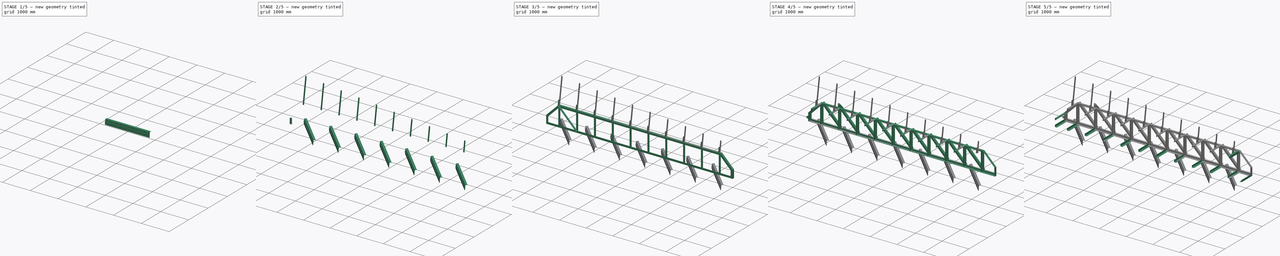
[diagram: build sequence overview — one tinted view per stage of 5, left to right]
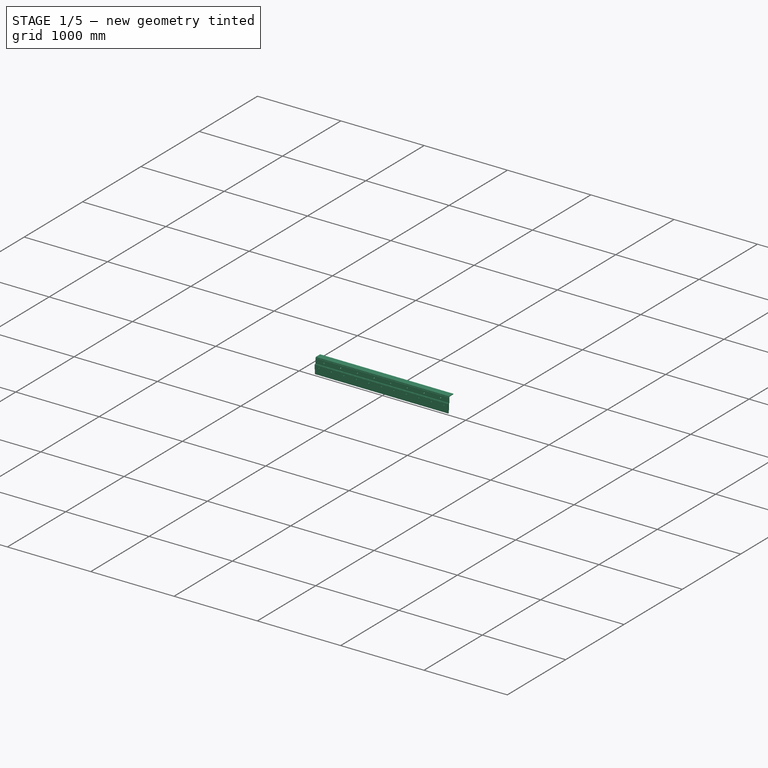
[diagram: stage 1 of 5 — iso view after this stage's code; geometry added in this stage tinted green]
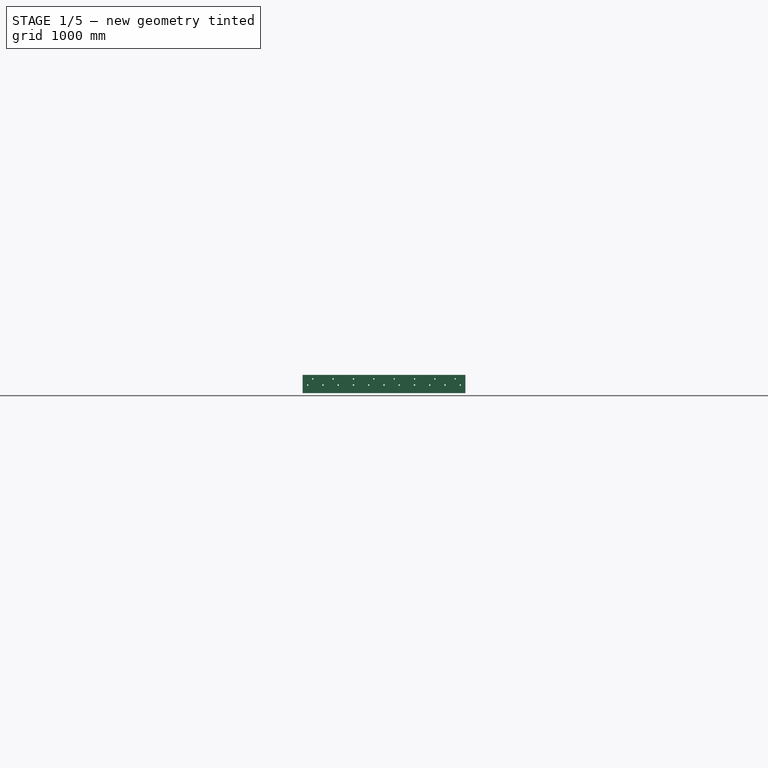
[diagram: stage 1 of 5 — front view after this stage's code; geometry added in this stage tinted green]
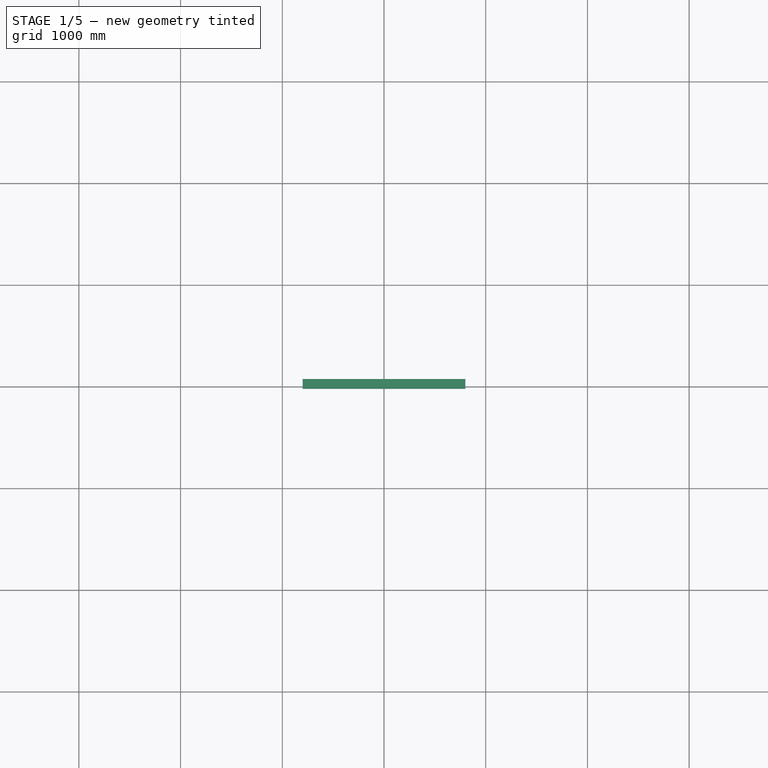
[diagram: stage 1 of 5 — top view after this stage's code; geometry added in this stage tinted green]
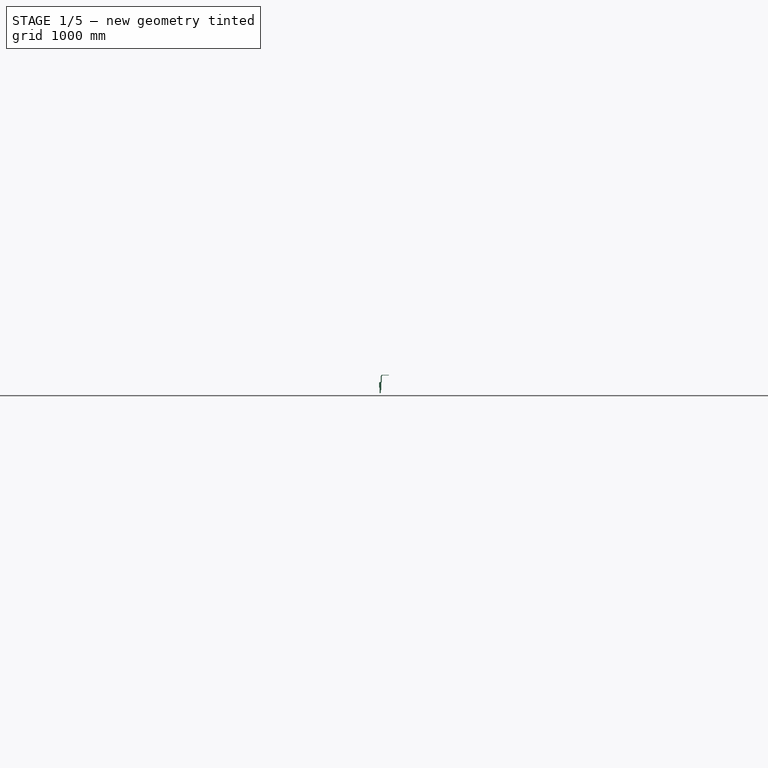
[diagram: stage 1 of 5 — right view after this stage's code; geometry added in this stage tinted green]
FCSTD DOCUMENT  (FreeCAD 1.0R39109 (Git))
Label: rakeAssy
License: All rights reserved
LicenseURL: https://en.wikipedia.org/wiki/All_rights_reserved
objects: Part::FeaturePython×19, Sketcher::SketchObject×9, Part::Extrusion×9, App::Part×4, Part::Cut×3, Spreadsheet::Sheet×1, Part::Sweep×1, Part::Compound×1, Part::Mirroring×1
note: 45 computed .brp shape members not serialized (recipe doc carries the construction recipe); baked Part::Feature solids carry a one-line shape summary decoded from their .brp

FEATURE [App::Part] Part  label="RakeArm"
  Group = -> [AngleSteel,Sketch,Sweep,AngleSteel001,Array,AngleSteel002,Array001,Sketch001,Extrude,Sketch002,Extrude001,Compound,Mirror,AngleSteel003,Array002,Clone,Clone001,Array003,Clone002,Clone003,Clone004,Sketch003,Extrude002,AngleSteel004,Cut,Array004,Part001,Array005,Sketch004,Extrude003,Cut001]
  Origin = -> Origin
FEATURE [Part::FeaturePython] AngleSteel006  label="AngleSteel011"  # WARN: FeaturePython — macro-defined, semantics opaque (R4)
  A = 75
  B = 75
  L = 1000
  Placement = pos=(0,0,0) rot=(0.707107,0.707107,0;3.14159rad)
  Solid = false
  g0 = 7.85
  mass = 0
  size = 10
  standard = SS_Equal
  t = 6
FEATURE [Part::Extrusion] Extrude004  label="Extrude"
  Base = -> AngleSteel006
  Dir = (1,-2e-16,1e-16)
  DirMode = 2
  FaceMakerClass = Part::FaceMakerBullseye
  FaceMakerMode = 3
  LengthFwd = 1600
  LengthRev = 0
  Solid = false
  Symmetric = true
FEATURE [Sketcher::SketchObject] Sketch005
  ArcFitTolerance = 0
  AttachmentSupport = -> [Extrude004]
  ExternalGeometry = -> [Extrude004]
  FullyConstrained = false
  MakeInternals = false
  MapMode = 5
  Placement = pos=(0,1.6e-15,0) rot=(1,0,0;1.5708rad)
  sketch-geometry (8):
    g0: Circle CenterX=-700 CenterY=-40.4478 CenterZ=0 NormalX=0 NormalY=0 NormalZ=1 AngleXU=0 Radius=7
    g1: Circle CenterX=700 CenterY=-39.6228 CenterZ=0 NormalX=0 NormalY=0 NormalZ=1 AngleXU=0 Radius=7
    g2: Circle CenterX=-500 CenterY=-40.4478 CenterZ=0 NormalX=0 NormalY=0 NormalZ=1 AngleXU=0 Radius=7
    g3: Circle CenterX=-299.492 CenterY=-40.4478 CenterZ=0 NormalX=0 NormalY=0 NormalZ=1 AngleXU=0 Radius=7
    g4: Circle CenterX=-99.2385 CenterY=-40.4478 CenterZ=0 NormalX=0 NormalY=0 NormalZ=1 AngleXU=0 Radius=7
    g5: Circle CenterX=101.015 CenterY=-40.4478 CenterZ=0 NormalX=0 NormalY=0 NormalZ=1 AngleXU=0 Radius=7
    g6: Circle CenterX=301.269 CenterY=-40.4478 CenterZ=0 NormalX=0 NormalY=0 NormalZ=1 AngleXU=0 Radius=7
    g7: Circle CenterX=501.523 CenterY=-40.4478 CenterZ=0 NormalX=0 NormalY=0 NormalZ=1 AngleXU=0 Radius=7
  constraints (11):
    c: Diameter(g0) = 14
    c: Diameter(g1) = 14
    c: DistanceX(g-3,g0) = 100
    c: DistanceX(g1,g-4) = 100
    c: Equal(g0,g2) = 14
    c: Equal(g0,g3) = 14
    c: Equal(g0,g4) = 14
    c: Equal(g0,g5) = 14
    c: Equal(g0,g6) = 14
    c: Equal(g0,g7) = 14
    c: DistanceX(g0,g2) = 200
FEATURE [Part::Extrusion] Extrude005  label="Extrude001"
  Base = -> Sketch005
  Dir = (0,-1,2e-16)
  DirMode = 2
  FaceMakerClass = Part::FaceMakerBullseye
  FaceMakerMode = 3
  LengthFwd = 10
  LengthRev = 0
  Reversed = true
  Solid = true
  Symmetric = false
FEATURE [Part::Cut] Cut002  label="angle"
  Base = -> Extrude004
  Tool = -> Extrude005
FEATURE [Sketcher::SketchObject] Sketch006
  ArcFitTolerance = 0
  FullyConstrained = false
  MakeInternals = false
  Placement = pos=(0,0,0) rot=(1,0,0;1.5708rad)
  sketch-geometry (67):
    g0: LineSegment StartX=-800 StartY=-70 StartZ=0 EndX=-800 EndY=70 EndZ=0
    g1: LineSegment StartX=-800 StartY=70 StartZ=0 EndX=800 EndY=70 EndZ=0
    g2: LineSegment StartX=800 StartY=70 StartZ=0 EndX=800 EndY=-70 EndZ=0
    g3: LineSegment StartX=800 StartY=-70 StartZ=0 EndX=-800 EndY=-70 EndZ=0
    g4: GeomPoint [constr] X=0 Y=0 Z=0
    g5: Circle CenterX=-700 CenterY=40 CenterZ=0 NormalX=0 NormalY=0 NormalZ=1 AngleXU=0 Radius=7
    g6: Circle CenterX=100 CenterY=40 CenterZ=0 NormalX=0 NormalY=0 NormalZ=1 AngleXU=0 Radius=7
    g7: Circle CenterX=-500 CenterY=40 CenterZ=0 NormalX=0 NormalY=0 NormalZ=1 AngleXU=0 Radius=7
    g8: Circle CenterX=-300 CenterY=40 CenterZ=0 NormalX=0 NormalY=0 NormalZ=1 AngleXU=0 Radius=7
    g9: Circle CenterX=-100 CenterY=40 CenterZ=0 NormalX=0 NormalY=0 NormalZ=1 AngleXU=0 Radius=7
    g10: Circle CenterX=300 CenterY=40 CenterZ=0 NormalX=0 NormalY=0 NormalZ=1 AngleXU=0 Radius=7
    g11: Circle CenterX=500 CenterY=40 CenterZ=0 NormalX=0 NormalY=0 NormalZ=1 AngleXU=0 Radius=7
    g12: Circle CenterX=700 CenterY=40 CenterZ=0 NormalX=0 NormalY=0 NormalZ=1 AngleXU=0 Radius=7
    g13: LineSegment StartX=-743 StartY=5 StartZ=0 EndX=-743 EndY=-45 EndZ=0
    g14: ArcOfCircle CenterX=-750 CenterY=-45 CenterZ=0 NormalX=0 NormalY=0 NormalZ=1 AngleXU=0 Radius=7 StartAngle=3.14159 EndAngle=6.28319
    g15: LineSegment StartX=-757 StartY=-45 StartZ=0 EndX=-757 EndY=5 EndZ=0
    g16: ArcOfCircle CenterX=-750 CenterY=5 CenterZ=0 NormalX=0 NormalY=0 NormalZ=1 AngleXU=0 Radius=7 StartAngle=2e-16 EndAngle=3.14159
    g17: LineSegment StartX=-593 StartY=5 StartZ=0 EndX=-593 EndY=-45 EndZ=0
    g18: ArcOfCircle CenterX=-600 CenterY=-45 CenterZ=0 NormalX=0 NormalY=0 NormalZ=1 AngleXU=0 Radius=7 StartAngle=3.14159 EndAngle=6.28319
    g19: LineSegment StartX=-607 StartY=-45 StartZ=0 EndX=-607 EndY=5 EndZ=0
    g20: ArcOfCircle CenterX=-600 CenterY=5 CenterZ=0 NormalX=0 NormalY=0 NormalZ=1 AngleXU=0 Radius=7 StartAngle=1e-16 EndAngle=3.14159
    g21: LineSegment [constr] StartX=-743 StartY=5 StartZ=0 EndX=-593 EndY=5 EndZ=0
    g22: LineSegment StartX=-443 StartY=5 StartZ=0 EndX=-443 EndY=-45 EndZ=0
    g23: ArcOfCircle CenterX=-450 CenterY=-45 CenterZ=0 NormalX=0 NormalY=0 NormalZ=1 AngleXU=0 Radius=7 StartAngle=3.14159 EndAngle=6.28319
    g24: LineSegment StartX=-457 StartY=-45 StartZ=0 EndX=-457 EndY=5 EndZ=0
    g25: ArcOfCircle CenterX=-450 CenterY=5 CenterZ=0 NormalX=0 NormalY=0 NormalZ=1 AngleXU=0 Radius=7 StartAngle=1e-16 EndAngle=3.14159
    g26: LineSegment [constr] StartX=-593 StartY=5 StartZ=0 EndX=-443 EndY=5 EndZ=0
    g27: LineSegment StartX=-293 StartY=5 StartZ=0 EndX=-293 EndY=-45 EndZ=0
    g28: ArcOfCircle CenterX=-300 CenterY=-45 CenterZ=0 NormalX=0 NormalY=0 NormalZ=1 AngleXU=0 Radius=7 StartAngle=3.14159 EndAngle=6.28319
    g29: LineSegment StartX=-307 StartY=-45 StartZ=0 EndX=-307 EndY=5 EndZ=0
    g30: ArcOfCircle CenterX=-300 CenterY=5 CenterZ=0 NormalX=0 NormalY=0 NormalZ=1 AngleXU=0 Radius=7 StartAngle=1e-16 EndAngle=3.14159
    g31: LineSegment [constr] StartX=-443 StartY=5 StartZ=0 EndX=-293 EndY=5 EndZ=0
    g32: LineSegment StartX=-143 StartY=5 StartZ=0 EndX=-143 EndY=-45 EndZ=0
    g33: ArcOfCircle CenterX=-150 CenterY=-45 CenterZ=0 NormalX=0 NormalY=0 NormalZ=1 AngleXU=0 Radius=7 StartAngle=3.14159 EndAngle=6.28319
    g34: LineSegment StartX=-157 StartY=-45 StartZ=0 EndX=-157 EndY=5 EndZ=0
    g35: ArcOfCircle CenterX=-150 CenterY=5 CenterZ=0 NormalX=0 NormalY=0 NormalZ=1 AngleXU=0 Radius=7 StartAngle=1e-16 EndAngle=3.14159
    g36: LineSegment [constr] StartX=-293 StartY=5 StartZ=0 EndX=-143 EndY=5 EndZ=0
    g37: LineSegment StartX=7 StartY=5 StartZ=0 EndX=7 EndY=-45 EndZ=0
    g38: ArcOfCircle CenterX=-3.42e-14 CenterY=-45 CenterZ=0 NormalX=0 NormalY=0 NormalZ=1 AngleXU=0 Radius=7 StartAngle=3.14159 EndAngle=6.28319
    g39: LineSegment StartX=-7 StartY=-45 StartZ=0 EndX=-7 EndY=5 EndZ=0
    g40: ArcOfCircle CenterX=-3.42e-14 CenterY=5 CenterZ=0 NormalX=0 NormalY=0 NormalZ=1 AngleXU=0 Radius=7 StartAngle=1e-16 EndAngle=3.14159
    g41: LineSegment [constr] StartX=-143 StartY=5 StartZ=0 EndX=7 EndY=5 EndZ=0
    g42: LineSegment StartX=157 StartY=5 StartZ=0 EndX=157 EndY=-45 EndZ=0
    g43: ArcOfCircle CenterX=150 CenterY=-45 CenterZ=0 NormalX=0 NormalY=0 NormalZ=1 AngleXU=0 Radius=7 StartAngle=3.14159 EndAngle=6.28319
    g44: LineSegment StartX=143 StartY=-45 StartZ=0 EndX=143 EndY=5 EndZ=0
    g45: ArcOfCircle CenterX=150 CenterY=5 CenterZ=0 NormalX=0 NormalY=0 NormalZ=1 AngleXU=0 Radius=7 StartAngle=1e-16 EndAngle=3.14159
    g46: LineSegment [constr] StartX=7 StartY=5 StartZ=0 EndX=157 EndY=5 EndZ=0
    g47: LineSegment StartX=307 StartY=5 StartZ=0 EndX=307 EndY=-45 EndZ=0
    g48: ArcOfCircle CenterX=300 CenterY=-45 CenterZ=0 NormalX=0 NormalY=0 NormalZ=1 AngleXU=0 Radius=7 StartAngle=3.14159 EndAngle=6.28319
    g49: LineSegment StartX=293 StartY=-45 StartZ=0 EndX=293 EndY=5 EndZ=0
    g50: ArcOfCircle CenterX=300 CenterY=5 CenterZ=0 NormalX=0 NormalY=0 NormalZ=1 AngleXU=0 Radius=7 StartAngle=1e-16 EndAngle=3.14159
    g51: LineSegment [constr] StartX=157 StartY=5 StartZ=0 EndX=307 EndY=5 EndZ=0
    g52: LineSegment StartX=457 StartY=5 StartZ=0 EndX=457 EndY=-45 EndZ=0
    g53: ArcOfCircle CenterX=450 CenterY=-45 CenterZ=0 NormalX=0 NormalY=0 NormalZ=1 AngleXU=0 Radius=7 StartAngle=3.14159 EndAngle=6.28319
    g54: LineSegment StartX=443 StartY=-45 StartZ=0 EndX=443 EndY=5 EndZ=0
    g55: ArcOfCircle CenterX=450 CenterY=5 CenterZ=0 NormalX=0 NormalY=0 NormalZ=1 AngleXU=0 Radius=7 StartAngle=2e-16 EndAngle=3.14159
    g56: LineSegment [constr] StartX=307 StartY=5 StartZ=0 EndX=457 EndY=5 EndZ=0
    g57: LineSegment StartX=607 StartY=5 StartZ=0 EndX=607 EndY=-45 EndZ=0
    g58: ArcOfCircle CenterX=600 CenterY=-45 CenterZ=0 NormalX=0 NormalY=0 NormalZ=1 AngleXU=0 Radius=7 StartAngle=3.14159 EndAngle=6.28319
    g59: LineSegment StartX=593 StartY=-45 StartZ=0 EndX=593 EndY=5 EndZ=0
    g60: ArcOfCircle CenterX=600 CenterY=5 CenterZ=0 NormalX=0 NormalY=0 NormalZ=1 AngleXU=0 Radius=7 StartAngle=1e-16 EndAngle=3.14159
    g61: LineSegment [constr] StartX=457 StartY=5 StartZ=0 EndX=607 EndY=5 EndZ=0
    g62: LineSegment StartX=757 StartY=5 StartZ=0 EndX=757 EndY=-45 EndZ=0
    g63: ArcOfCircle CenterX=750 CenterY=-45 CenterZ=0 NormalX=0 NormalY=0 NormalZ=1 AngleXU=0 Radius=7 StartAngle=3.14159 EndAngle=6.28319
    g64: LineSegment StartX=743 StartY=-45 StartZ=0 EndX=743 EndY=5 EndZ=0
    g65: ArcOfCircle CenterX=750 CenterY=5 CenterZ=0 NormalX=0 NormalY=0 NormalZ=1 AngleXU=0 Radius=7 StartAngle=1e-16 EndAngle=3.14159
    g66: LineSegment [constr] StartX=607 StartY=5 StartZ=0 EndX=757 EndY=5 EndZ=0
  constraints (160):
    c: Coincident(g0,g1)
    c: Coincident(g1,g2)
    c: Coincident(g2,g3)
    c: Coincident(g3,g0)
    c: Horizontal(g1)
    c: Horizontal(g3)
    c: Vertical(g0)
    c: Vertical(g2)
    c: Symmetric(g1,g0,g4)
    c: Coincident(g4,g-1)
    c: DistanceX(g1,g1) = 1600
    c: DistanceY(g2,g2) = 140
    c: Diameter(g5) = 14
    c: Diameter(g6) = 14
    c: DistanceX(g0,g5) = 100
    c: Distance(g5,g1) = 30
    c: Distance(g6,g1) = 30
    c: Equal(g5,g7) = 14
    c: Equal(g5,g8) = 14
    c: Equal(g5,g9) = 14
    c: Equal(g5,g10) = 14
    c: Equal(g5,g11) = 14
    c: Equal(g5,g12) = 14
    c: DistanceX(g5,g7) = 200
    c: DistanceX(g7,g8) = 200
    c: DistanceX(g8,g9) = 200
    c: DistanceX(g9,g6) = 200
    c: DistanceX(g6,g10) = 200
    c: DistanceX(g10,g11) = 200
    c: DistanceX(g11,g12) = 200
    c: Vertical(g13)
    c: Tangent(g13,g14) = 1.5708
    c: Vertical(g15)
    c: Tangent(g15,g16) = 1.5708
    c: DistanceY(g15,g15) = 50
    c: Tangent(g16,g13) = 1.5708
    c: Tangent(g14,g15) = 1.5708
    c: DistanceX(g15,g13) = 14
    c: Distance(g14,g3) = 25
    c: Distance(g14,g0) = 50
    c: Vertical(g17)
    c: Tangent(g17,g18) = 1.5708
    c: Vertical(g19)
    c: Tangent(g19,g20) = 1.5708
    c: Equal(g15,g19) = 50
    c: Tangent(g20,g17) = 1.5708
    c: Tangent(g18,g19) = 1.5708
    c: DistanceX(g19,g17) = 14
    c: Coincident(g13,g21)
    c: Coincident(g17,g21)
    c: Distance(g21) = 150
    c: Angle(g21) = 0
    c: Vertical(g22)
    c: Tangent(g22,g23) = 1.5708
    c: Vertical(g24)
    c: Tangent(g24,g25) = 1.5708
    c: Equal(g15,g24) = 50
    c: Tangent(g25,g22) = 1.5708
    c: Tangent(g23,g24) = 1.5708
    c: DistanceX(g24,g22) = 14
    c: Coincident(g17,g26)
    c: Coincident(g22,g26)
    c: Equal(g21,g26)
    c: Parallel(g26,g21)
    c: Vertical(g27)
    c: Tangent(g27,g28) = 1.5708
    c: Vertical(g29)
    c: Tangent(g29,g30) = 1.5708
    c: Equal(g15,g29) = 50
    c: Tangent(g30,g27) = 1.5708
    c: Tangent(g28,g29) = 1.5708
    c: DistanceX(g29,g27) = 14
    c: Coincident(g22,g31)
    c: Coincident(g27,g31)
    c: Equal(g21,g31)
    c: Parallel(g31,g21)
    c: Vertical(g32)
    c: Tangent(g32,g33) = 1.5708
    c: Vertical(g34)
    c: Tangent(g34,g35) = 1.5708
    c: Equal(g15,g34) = 50
    c: Tangent(g35,g32) = 1.5708
    c: Tangent(g33,g34) = 1.5708
    c: DistanceX(g34,g32) = 14
    c: Coincident(g27,g36)
    c: Coincident(g32,g36)
    c: Equal(g21,g36)
    c: Parallel(g36,g21)
    c: Vertical(g37)
    c: Tangent(g37,g38) = 1.5708
    c: Vertical(g39)
    c: Tangent(g39,g40) = 1.5708
    c: Equal(g15,g39) = 50
    c: Tangent(g40,g37) = 1.5708
    c: Tangent(g38,g39) = 1.5708
    c: DistanceX(g39,g37) = 14
    c: Coincident(g32,g41)
    c: Coincident(g37,g41)
    c: Equal(g21,g41)
    c: Parallel(g41,g21)
    c: Vertical(g42)
    c: Tangent(g42,g43) = 1.5708
    c: Vertical(g44)
    c: Tangent(g44,g45) = 1.5708
    c: Equal(g15,g44) = 50
    c: Tangent(g45,g42) = 1.5708
    c: Tangent(g43,g44) = 1.5708
    c: DistanceX(g44,g42) = 14
    c: Coincident(g37,g46)
    c: Coincident(g42,g46)
    c: Equal(g21,g46)
    c: Parallel(g46,g21)
    c: Vertical(g47)
    c: Tangent(g47,g48) = 1.5708
    c: Vertical(g49)
    c: Tangent(g49,g50) = 1.5708
    c: Equal(g15,g49) = 50
    c: Tangent(g50,g47) = 1.5708
    c: Tangent(g48,g49) = 1.5708
    c: DistanceX(g49,g47) = 14
    c: Coincident(g42,g51)
    c: Coincident(g47,g51)
    c: Equal(g21,g51)
    c: Parallel(g51,g21)
    c: Vertical(g52)
    c: Tangent(g52,g53) = 1.5708
    c: Vertical(g54)
    c: Tangent(g54,g55) = 1.5708
    c: Equal(g15,g54) = 50
    c: Tangent(g55,g52) = 1.5708
    c: Tangent(g53,g54) = 1.5708
    c: DistanceX(g54,g52) = 14
    c: Coincident(g47,g56)
    c: Coincident(g52,g56)
    c: Equal(g21,g56)
    c: Parallel(g56,g21)
    c: Vertical(g57)
    c: Tangent(g57,g58) = 1.5708
    c: Vertical(g59)
    c: Tangent(g59,g60) = 1.5708
    c: Equal(g15,g59) = 50
    c: Tangent(g60,g57) = 1.5708
    c: Tangent(g58,g59) = 1.5708
    c: DistanceX(g59,g57) = 14
    c: Coincident(g52,g61)
    c: Coincident(g57,g61)
    c: Equal(g21,g61)
    c: Parallel(g61,g21)
    c: Vertical(g62)
    c: Tangent(g62,g63) = 1.5708
    c: Vertical(g64)
    c: Tangent(g64,g65) = 1.5708
    c: Equal(g15,g64) = 50
    c: Tangent(g65,g62) = 1.5708
    c: Tangent(g63,g64) = 1.5708
    c: DistanceX(g64,g62) = 14
    c: Coincident(g57,g66)
    c: Coincident(g62,g66)
    c: Equal(g21,g66)
    c: Parallel(g66,g21)
FEATURE [Part::Extrusion] Extrude006  label="plate_1"
  Base = -> Sketch006
  Dir = (0,-1,2e-16)
  DirMode = 2
  FaceMakerClass = Part::FaceMakerBullseye
  FaceMakerMode = 3
  LengthFwd = 5
  LengthRev = 0
  Placement = pos=(1.14e-13,-2.99e-13,-80.4478) rot=(0,0,1;0rad)
  Solid = true
  Symmetric = false
FEATURE [Sketcher::SketchObject] Sketch007
  ArcFitTolerance = 0
  FullyConstrained = true
  MakeInternals = false
  Placement = pos=(0,0,0) rot=(1,0,0;1.5708rad)
  sketch-geometry (26):
    g0: LineSegment StartX=-800 StartY=-55 StartZ=0 EndX=-800 EndY=55 EndZ=0
    g1: LineSegment StartX=-800 StartY=55 StartZ=0 EndX=800 EndY=55 EndZ=0
    g2: LineSegment StartX=800 StartY=55 StartZ=0 EndX=800 EndY=-55 EndZ=0
    g3: LineSegment StartX=800 StartY=-55 StartZ=0 EndX=-800 EndY=-55 EndZ=0
    g4: GeomPoint [constr] X=0 Y=0 Z=0
    g5: Circle CenterX=-750 CenterY=25 CenterZ=0 NormalX=0 NormalY=0 NormalZ=1 AngleXU=0 Radius=7
    g6: Circle CenterX=-600 CenterY=25 CenterZ=0 NormalX=0 NormalY=0 NormalZ=1 AngleXU=0 Radius=7
    g7: LineSegment [constr] StartX=-750 StartY=25 StartZ=0 EndX=-600 EndY=25 EndZ=0
    g8: Circle CenterX=-450 CenterY=25 CenterZ=0 NormalX=0 NormalY=0 NormalZ=1 AngleXU=0 Radius=7
    g9: LineSegment [constr] StartX=-600 StartY=25 StartZ=0 EndX=-450 EndY=25 EndZ=0
    g10: Circle CenterX=-300 CenterY=25 CenterZ=0 NormalX=0 NormalY=0 NormalZ=1 AngleXU=0 Radius=7
    g11: LineSegment [constr] StartX=-450 StartY=25 StartZ=0 EndX=-300 EndY=25 EndZ=0
    g12: Circle CenterX=-150 CenterY=25 CenterZ=0 NormalX=0 NormalY=0 NormalZ=1 AngleXU=0 Radius=7
    g13: LineSegment [constr] StartX=-300 StartY=25 StartZ=0 EndX=-150 EndY=25 EndZ=0
    g14: Circle CenterX=1.11421e-10 CenterY=25 CenterZ=0 NormalX=0 NormalY=0 NormalZ=1 AngleXU=0 Radius=7
    g15: LineSegment [constr] StartX=-150 StartY=25 StartZ=0 EndX=1.11413e-10 EndY=25 EndZ=0
    g16: Circle CenterX=150 CenterY=25 CenterZ=0 NormalX=0 NormalY=0 NormalZ=1 AngleXU=0 Radius=7
    g17: LineSegment [constr] StartX=1.11421e-10 StartY=25 StartZ=0 EndX=150 EndY=25 EndZ=0
    g18: Circle CenterX=300 CenterY=25 CenterZ=0 NormalX=0 NormalY=0 NormalZ=1 AngleXU=0 Radius=7
    g19: LineSegment [constr] StartX=150 StartY=25 StartZ=0 EndX=300 EndY=25 EndZ=0
    g20: Circle CenterX=450 CenterY=25 CenterZ=0 NormalX=0 NormalY=0 NormalZ=1 AngleXU=0 Radius=7
    g21: LineSegment [constr] StartX=300 StartY=25 StartZ=0 EndX=450 EndY=25 EndZ=0
    g22: Circle CenterX=600 CenterY=25 CenterZ=0 NormalX=0 NormalY=0 NormalZ=1 AngleXU=0 Radius=7
    g23: LineSegment [constr] StartX=450 StartY=25 StartZ=0 EndX=600 EndY=25 EndZ=0
    g24: Circle CenterX=750 CenterY=25 CenterZ=0 NormalX=0 NormalY=0 NormalZ=1 AngleXU=0 Radius=7
    g25: LineSegment [constr] StartX=600 StartY=25 StartZ=0 EndX=750 EndY=25 EndZ=0
  constraints (65):
    c: Coincident(g0,g1)
    c: Coincident(g1,g2)
    c: Coincident(g2,g3)
    c: Coincident(g3,g0)
    c: Horizontal(g1)
    c: Horizontal(g3)
    c: Vertical(g0)
    c: Vertical(g2)
    c: Symmetric(g1,g0,g4)
    c: Coincident(g4,g-1)
    c: DistanceX(g1,g1) = 1600
    c: DistanceY(g2,g2) = 110
    c: Diameter(g5) = 14
    c: Distance(g5,g1) = 30
    c: Distance(g5,g0) = 50
    c: Equal(g5,g6) = 14
    c: Coincident(g5,g7)
    c: Coincident(g6,g7)
    c: Distance(g7) = 150
    c: Angle(g7) = 0
    c: Equal(g5,g8) = 14
    c: Coincident(g6,g9)
    c: Coincident(g8,g9)
    c: Equal(g7,g9)
    c: Parallel(g9,g7)
    c: Equal(g5,g10) = 14
    c: Coincident(g8,g11)
    c: Coincident(g10,g11)
    c: Equal(g7,g11)
    c: Parallel(g11,g7)
    c: Equal(g5,g12) = 14
    c: Coincident(g10,g13)
    c: Coincident(g12,g13)
    c: Equal(g7,g13)
    c: Parallel(g13,g7)
    c: Equal(g5,g14) = 14
    c: Coincident(g12,g15)
    c: Coincident(g14,g15)
    c: Equal(g7,g15)
    c: Parallel(g15,g7)
    c: Equal(g5,g16) = 14
    c: Coincident(g14,g17)
    c: Coincident(g16,g17)
    c: Equal(g7,g17)
    c: Parallel(g17,g7)
    c: Equal(g5,g18) = 14
    c: Coincident(g16,g19)
    c: Coincident(g18,g19)
    c: Equal(g7,g19)
    c: Parallel(g19,g7)
    c: Equal(g5,g20) = 14
    c: Coincident(g18,g21)
    c: Coincident(g20,g21)
    c: Equal(g7,g21)
    c: Parallel(g21,g7)
    c: Equal(g5,g22) = 14
    c: Coincident(g20,g23)
    c: Coincident(g22,g23)
    c: Equal(g7,g23)
    c: Parallel(g23,g7)
    c: Equal(g5,g24) = 14
    c: Coincident(g22,g25)
    c: Coincident(g24,g25)
    c: Equal(g7,g25)
    c: Parallel(g25,g7)
FEATURE [Part::Extrusion] Extrude007  label="rubberPlate"
  Base = -> Sketch007
  Dir = (0,-1,2e-16)
  DirMode = 2
  FaceMakerClass = Part::FaceMakerBullseye
  FaceMakerMode = 3
  LengthFwd = 10
  LengthRev = 0
  Placement = pos=(2.27e-13,-5,-125.45) rot=(0,0,1;0rad)
  Solid = true
  Symmetric = false
FEATURE [Sketcher::SketchObject] Sketch008
  ArcFitTolerance = 0
  FullyConstrained = true
  MakeInternals = false
  Placement = pos=(0,0,0) rot=(1,0,0;1.5708rad)
  sketch-geometry (26):
    g0: LineSegment StartX=-800 StartY=-25 StartZ=0 EndX=-800 EndY=25 EndZ=0
    g1: LineSegment StartX=-800 StartY=25 StartZ=0 EndX=800 EndY=25 EndZ=0
    g2: LineSegment StartX=800 StartY=25 StartZ=0 EndX=800 EndY=-25 EndZ=0
    g3: LineSegment StartX=800 StartY=-25 StartZ=0 EndX=-800 EndY=-25 EndZ=0
    g4: GeomPoint [constr] X=0 Y=0 Z=0
    g5: Circle CenterX=-750 CenterY=0 CenterZ=0 NormalX=0 NormalY=0 NormalZ=1 AngleXU=0 Radius=7
    g6: Circle CenterX=-600 CenterY=0 CenterZ=0 NormalX=0 NormalY=0 NormalZ=1 AngleXU=0 Radius=7
    g7: LineSegment [constr] StartX=-750 StartY=0 StartZ=0 EndX=-600 EndY=0 EndZ=0
    g8: Circle CenterX=-450 CenterY=0 CenterZ=0 NormalX=0 NormalY=0 NormalZ=1 AngleXU=0 Radius=7
    g9: LineSegment [constr] StartX=-600 StartY=0 StartZ=0 EndX=-450 EndY=0 EndZ=0
    g10: Circle CenterX=-300 CenterY=0 CenterZ=0 NormalX=0 NormalY=0 NormalZ=1 AngleXU=0 Radius=7
    g11: LineSegment [constr] StartX=-450 StartY=0 StartZ=0 EndX=-300 EndY=0 EndZ=0
    g12: Circle CenterX=-150 CenterY=0 CenterZ=0 NormalX=0 NormalY=0 NormalZ=1 AngleXU=0 Radius=7
    g13: LineSegment [constr] StartX=-300 StartY=0 StartZ=0 EndX=-150 EndY=0 EndZ=0
    g14: Circle CenterX=5.68e-14 CenterY=0 CenterZ=0 NormalX=0 NormalY=0 NormalZ=1 AngleXU=0 Radius=7
    g15: LineSegment [constr] StartX=-150 StartY=0 StartZ=0 EndX=5.68e-14 EndY=0 EndZ=0
    g16: Circle CenterX=150 CenterY=0 CenterZ=0 NormalX=0 NormalY=0 NormalZ=1 AngleXU=0 Radius=7
    g17: LineSegment [constr] StartX=5.68e-14 StartY=0 StartZ=0 EndX=150 EndY=0 EndZ=0
    g18: Circle CenterX=300 CenterY=0 CenterZ=0 NormalX=0 NormalY=0 NormalZ=1 AngleXU=0 Radius=7
    g19: LineSegment [constr] StartX=150 StartY=0 StartZ=0 EndX=300 EndY=0 EndZ=0
    g20: Circle CenterX=450 CenterY=0 CenterZ=0 NormalX=0 NormalY=0 NormalZ=1 AngleXU=0 Radius=7
    g21: LineSegment [constr] StartX=300 StartY=0 StartZ=0 EndX=450 EndY=0 EndZ=0
    g22: Circle CenterX=600 CenterY=0 CenterZ=0 NormalX=0 NormalY=0 NormalZ=1 AngleXU=0 Radius=7
    g23: LineSegment [constr] StartX=450 StartY=0 StartZ=0 EndX=600 EndY=0 EndZ=0
    g24: Circle CenterX=750 CenterY=0 CenterZ=0 NormalX=0 NormalY=0 NormalZ=1 AngleXU=0 Radius=7
    g25: LineSegment [constr] StartX=600 StartY=0 StartZ=0 EndX=750 EndY=0 EndZ=0
  constraints (65):
    c: Coincident(g0,g1)
    c: Coincident(g1,g2)
    c: Coincident(g2,g3)
    c: Coincident(g3,g0)
    c: Horizontal(g1)
    c: Horizontal(g3)
    c: Vertical(g0)
    c: Vertical(g2)
    c: Symmetric(g1,g0,g4)
    c: Coincident(g4,g-1)
    c: DistanceX(g1,g1) = 1600
    c: DistanceY(g2,g2) = 50
    c: PointOnObject(g5,g-1)
    c: Diameter(g5) = 14
    c: DistanceX(g0,g5) = 50
    c: Equal(g5,g6) = 14
    c: Coincident(g5,g7)
    c: Coincident(g6,g7)
    c: Distance(g7) = 150
    c: Angle(g7) = 0
    c: Equal(g5,g8) = 14
    c: Coincident(g6,g9)
    c: Coincident(g8,g9)
    c: Equal(g7,g9)
    c: Parallel(g9,g7)
    c: Equal(g5,g10) = 14
    c: Coincident(g8,g11)
    c: Coincident(g10,g11)
    c: Equal(g7,g11)
    c: Parallel(g11,g7)
    c: Equal(g5,g12) = 14
    c: Coincident(g10,g13)
    c: Coincident(g12,g13)
    c: Equal(g7,g13)
    c: Parallel(g13,g7)
    c: Equal(g5,g14) = 14
    c: Coincident(g12,g15)
    c: Coincident(g14,g15)
    c: Equal(g7,g15)
    c: Parallel(g15,g7)
    c: Equal(g5,g16) = 14
    c: Coincident(g14,g17)
    c: Coincident(g16,g17)
    c: Equal(g7,g17)
    c: Parallel(g17,g7)
    c: Equal(g5,g18) = 14
    c: Coincident(g16,g19)
    c: Coincident(g18,g19)
    c: Equal(g7,g19)
    c: Parallel(g19,g7)
    c: Equal(g5,g20) = 14
    c: Coincident(g18,g21)
    c: Coincident(g20,g21)
    c: Equal(g7,g21)
    c: Parallel(g21,g7)
    c: Equal(g5,g22) = 14
    c: Coincident(g20,g23)
    c: Coincident(g22,g23)
    c: Equal(g7,g23)
    c: Parallel(g23,g7)
    c: Equal(g5,g24) = 14
    c: Coincident(g22,g25)
    c: Coincident(g24,g25)
    c: Equal(g7,g25)
    c: Parallel(g25,g7)
FEATURE [Part::Extrusion] Extrude008  label="plate_2"
  Base = -> Sketch008
  Dir = (0,-1,2e-16)
  DirMode = 2
  FaceMakerClass = Part::FaceMakerBullseye
  FaceMakerMode = 3
  LengthFwd = 5
  LengthRev = 0
  Placement = pos=(0,-15,-100.45) rot=(0,0,1;0rad)
  Solid = true
  Symmetric = false
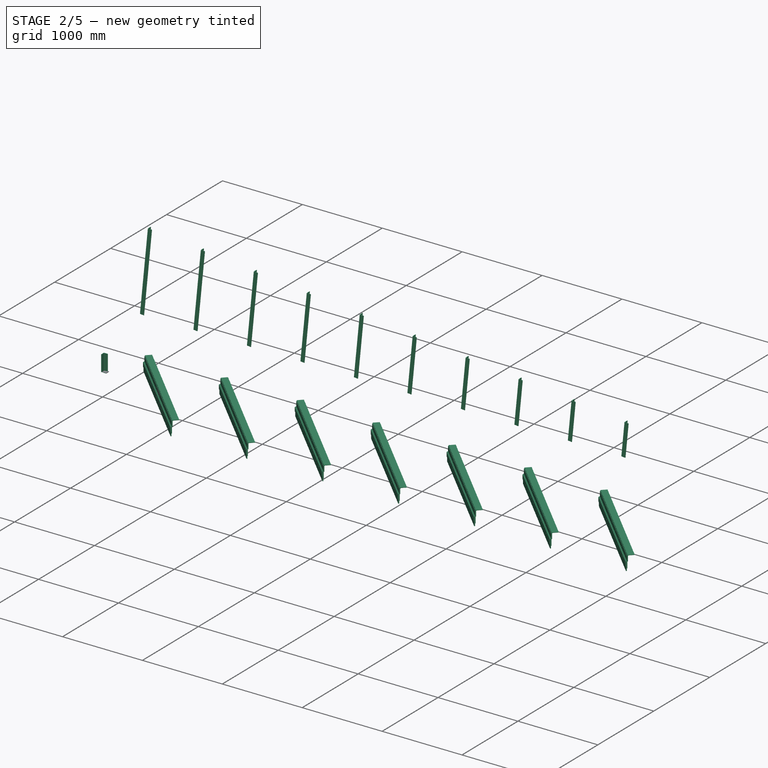
[diagram: stage 2 of 5 — iso view after this stage's code; geometry added in this stage tinted green]
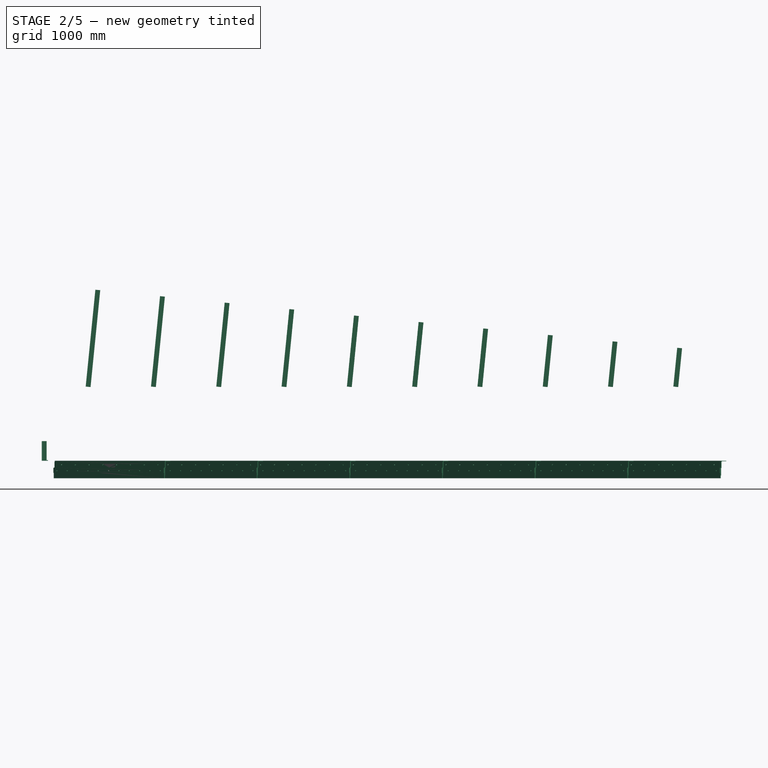
[diagram: stage 2 of 5 — front view after this stage's code; geometry added in this stage tinted green]
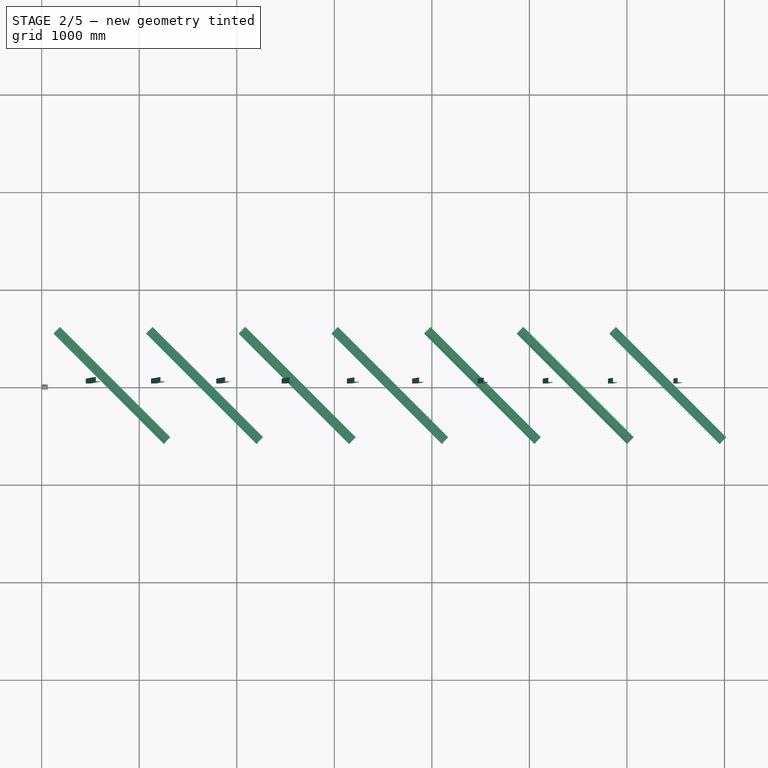
[diagram: stage 2 of 5 — top view after this stage's code; geometry added in this stage tinted green]
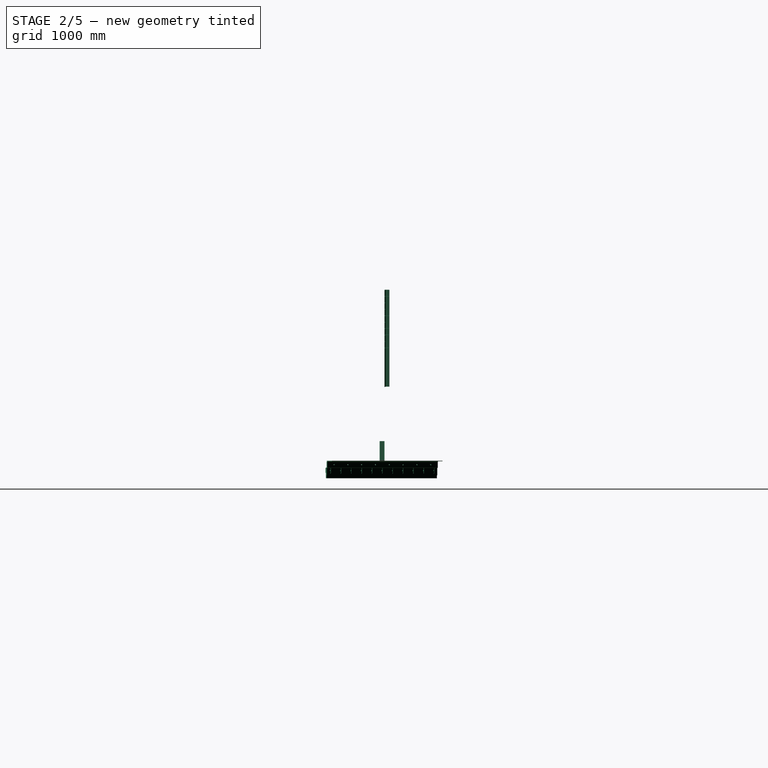
[diagram: stage 2 of 5 — right view after this stage's code; geometry added in this stage tinted green]
FEATURE [Part::FeaturePython] AngleSteel004  label="AngleSteel009"  # WARN: FeaturePython — macro-defined, semantics opaque (R4)
  A = 50
  B = 50
  L = 200
  Placement = pos=(25,0,0) rot=(0,0,1;0rad)
  Solid = true
  g0 = 7.85
  mass = 0.88607
  size = 7
  standard = SS_Equal
  t = 6
FEATURE [Sketcher::SketchObject] Sketch003
  ArcFitTolerance = 0
  FullyConstrained = false
  MakeInternals = false
  Placement = pos=(0,0,0) rot=(1,0,0;1.5708rad)
  expr: Constraints[6] = Spreadsheet.beta
  sketch-geometry (3):
    g0: LineSegment StartX=0 StartY=0 StartZ=0 EndX=64.1183 EndY=6.39986 EndZ=0
    g1: LineSegment StartX=64.1183 StartY=6.39986 StartZ=0 EndX=64.1183 EndY=0 EndZ=0
    g2: LineSegment StartX=64.1183 StartY=0 StartZ=0 EndX=0 EndY=0 EndZ=0
  constraints (7):
    c: Coincident(g-1,g0)
    c: Coincident(g0,g1)
    c: Vertical(g1)
    c: Coincident(g1,g2)
    c: Coincident(g2,g0)
    c: Horizontal(g2)
    c: Angle(g2,g0) = 0.0994838
FEATURE [Part::Extrusion] Extrude002
  Base = -> Sketch003
  Dir = (0,-1,2e-16)
  DirMode = 2
  FaceMakerClass = Part::FaceMakerBullseye
  FaceMakerMode = 3
  LengthFwd = 50
  LengthRev = 0
  Solid = true
  Symmetric = true
FEATURE [Part::FeaturePython] AngleSteel005  label="AngleSteel010"  # WARN: FeaturePython — macro-defined, semantics opaque (R4)
  A = 50
  B = 50
  L = 1500
  Placement = pos=(25,0,0) rot=(0,0,1;1.5708rad)
  Solid = true
  g0 = 7.85
  mass = 6.64552
  size = 7
  standard = SS_Equal
  t = 6
FEATURE [App::Part] Part001
  Group = -> [AngleSteel005]
  Origin = -> Origin001
  Placement = pos=(450.993,50,760) rot=(0,1,0;0.099484rad)
  expr: .Placement.Base.x = Spreadsheet.H0 - Spreadsheet.h1 + 10 * sin(Spreadsheet.beta)
  expr: .Placement.Base.z = Spreadsheet.H0 + 10
FEATURE [Part::FeaturePython] Array005  # Draft array (typed FeaturePython)
  AlwaysSyncPlacement = false
  Angle = 360
  ArrayType = 0
  Axis = (0,0,1)
  Base = -> Part001
  Center = (0,0,0)
  Count = 10
  ExpandArray = false
  Fuse = false
  IntervalAxis = (0,0,0)
  IntervalX = (669.444,0,0)
  IntervalY = (0,100,0)
  IntervalZ = (0,0,100)
  NumberCircles = 3
  NumberPolar = 5
  NumberX = 10
  NumberY = 1
  NumberZ = 1
  PlacementList = 10 placements: arithmetic series from (450.993,50,760) step (669.444,0,0) to (6475.99,50,760)
  RadialDistance = 50
  ScaleList = (10) [(1,1,1),(1,1,1),(1,1,1),(1,1,1),(1,1,1),(1,1,1),(1,1,1),(1,1,1),(1,1,1),(1,1,1)]
  Symmetry = 1
  TangentialDistance = 25
  expr: .IntervalX.x = Spreadsheet.p0
  expr: NumberX = Spreadsheet.n0
FEATURE [Sketcher::SketchObject] Sketch004
  ArcFitTolerance = 0
  FullyConstrained = true
  MakeInternals = false
  Placement = pos=(0,0,0) rot=(1,0,0;1.5708rad)
  expr: Constraints[11] = Spreadsheet.beta
  expr: Constraints[1] = Spreadsheet.H0 + Spreadsheet.pk / cos(Spreadsheet.beta)
  expr: Constraints[2] = Spreadsheet.H0 - Spreadsheet.h1 + (Spreadsheet.pk + 10) * sin(Spreadsheet.beta) - 20
  expr: Constraints[3] = Spreadsheet.L0
  sketch-geometry (4):
    g0: LineSegment StartX=530.313 StartY=1754.97 StartZ=0 EndX=7530.31 EndY=1056.28 EndZ=0
    g1: LineSegment StartX=7530.31 StartY=1056.28 StartZ=0 EndX=7530.31 EndY=2554.97 EndZ=0
    g2: LineSegment StartX=530.313 StartY=1754.97 StartZ=0 EndX=530.313 EndY=2554.97 EndZ=0
    g3: LineSegment StartX=530.313 StartY=2554.97 StartZ=0 EndX=7530.31 EndY=2554.97 EndZ=0
  constraints (12):
    c: Coincident(g0,g1)
    c: DistanceY(g-1,g0) = 1754.97
    c: DistanceX(g-1,g0) = 530.313
    c: DistanceX(g0,g1) = 7000
    c: Vertical(g1)
    c: Coincident(g0,g2)
    c: Vertical(g2)
    c: Coincident(g2,g3)
    c: Horizontal(g3)
    c: Coincident(g1,g3)
    c: DistanceY(g2,g2) = 800
    c: Angle(g0,g3) = 0.0994838
FEATURE [Part::Extrusion] Extrude003
  Base = -> Sketch004
  Dir = (0,-1,2e-16)
  DirMode = 2
  FaceMakerClass = Part::FaceMakerBullseye
  FaceMakerMode = 3
  LengthFwd = 200
  LengthRev = 0
  Solid = true
  Symmetric = true
FEATURE [Part::Cut] Cut001  label="picketFence"
  Base = -> Array005
  Tool = -> Extrude003
FEATURE [App::Part] Part002  label="blade"
  Group = -> [AngleSteel006,Extrude004,Extrude005,Sketch005,Cut002,Sketch006,Extrude006,Sketch007,Extrude007,Sketch008,Extrude008]
  Origin = -> Origin002
  Placement = pos=(700,0,0) rot=(0,0,1;5.49779rad)
  expr: .Placement.Base.x = Spreadsheet.br
FEATURE [Part::FeaturePython] Array006  # Draft array (typed FeaturePython)
  AlwaysSyncPlacement = false
  Angle = 360
  ArrayType = 0
  Axis = (0,0,1)
  Base = -> Part002
  Center = (0,0,0)
  Count = 7
  ExpandArray = false
  Fuse = false
  IntervalAxis = (0,0,0)
  IntervalX = (950,0,0)
  IntervalY = (0,100,0)
  IntervalZ = (0,0,100)
  NumberCircles = 3
  NumberPolar = 5
  NumberX = 7
  NumberY = 1
  NumberZ = 1
  PlacementList = 7 placements: arithmetic series from (700,0,0) step (950,0,0) to (6400,0,0)
  RadialDistance = 50
  ScaleList = (7) [(1,1,1),(1,1,1),(1,1,1),(1,1,1),(1,1,1),(1,1,1),(1,1,1)]
  Symmetry = 1
  TangentialDistance = 25
  expr: .IntervalX.x = Spreadsheet.brs
  expr: NumberX = Spreadsheet.n00
FEATURE [App::Part] Part003  label="rakeAssy"
  Group = -> [Part002,Part,Array006,Spreadsheet]
  Origin = -> Origin003
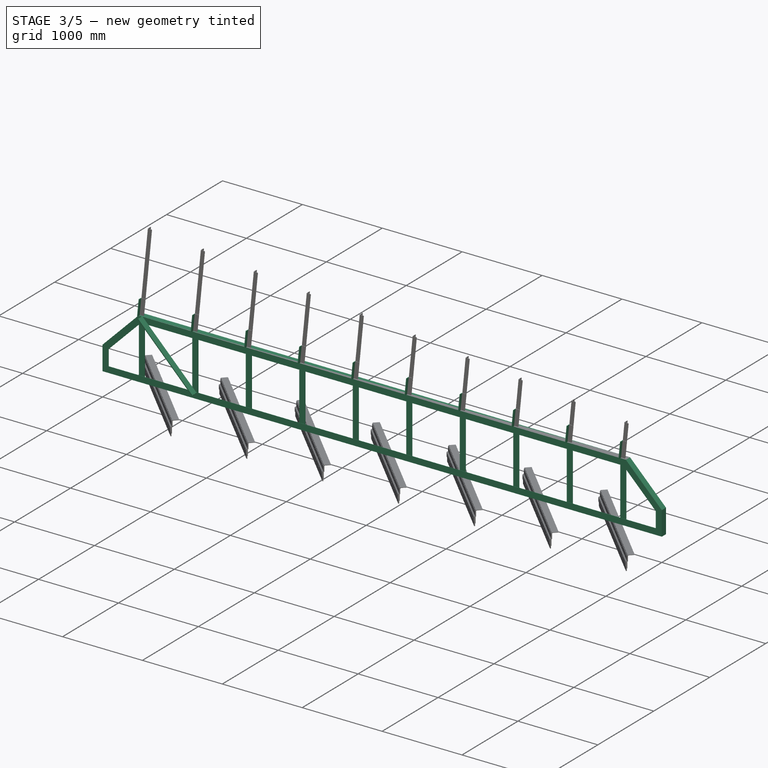
[diagram: stage 3 of 5 — iso view after this stage's code; geometry added in this stage tinted green]
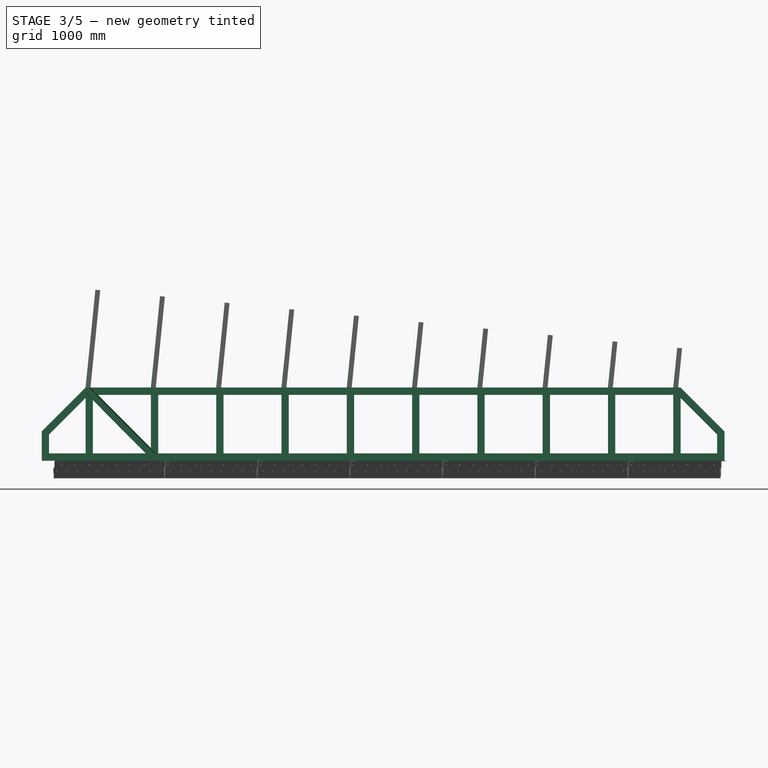
[diagram: stage 3 of 5 — front view after this stage's code; geometry added in this stage tinted green]
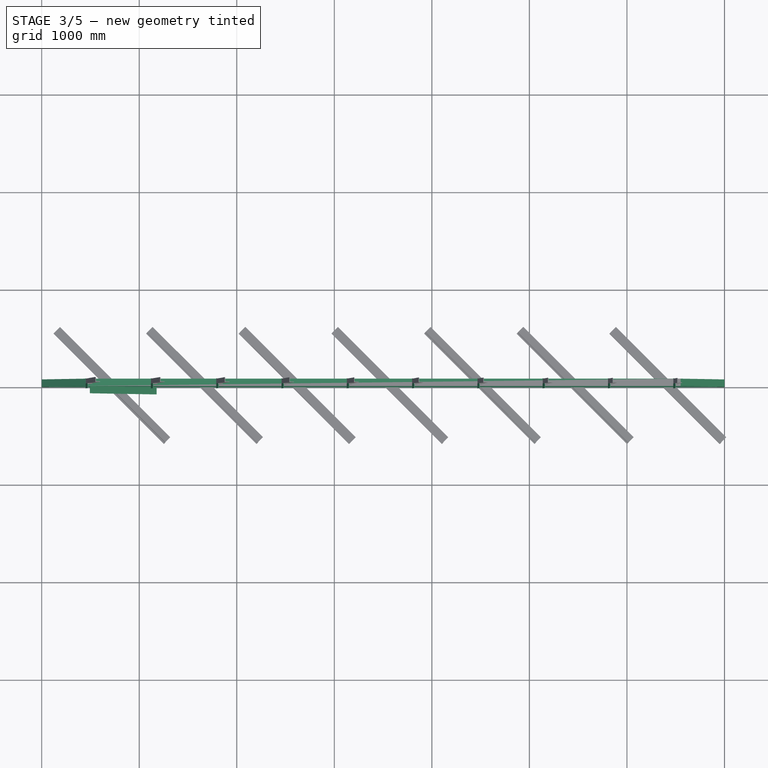
[diagram: stage 3 of 5 — top view after this stage's code; geometry added in this stage tinted green]
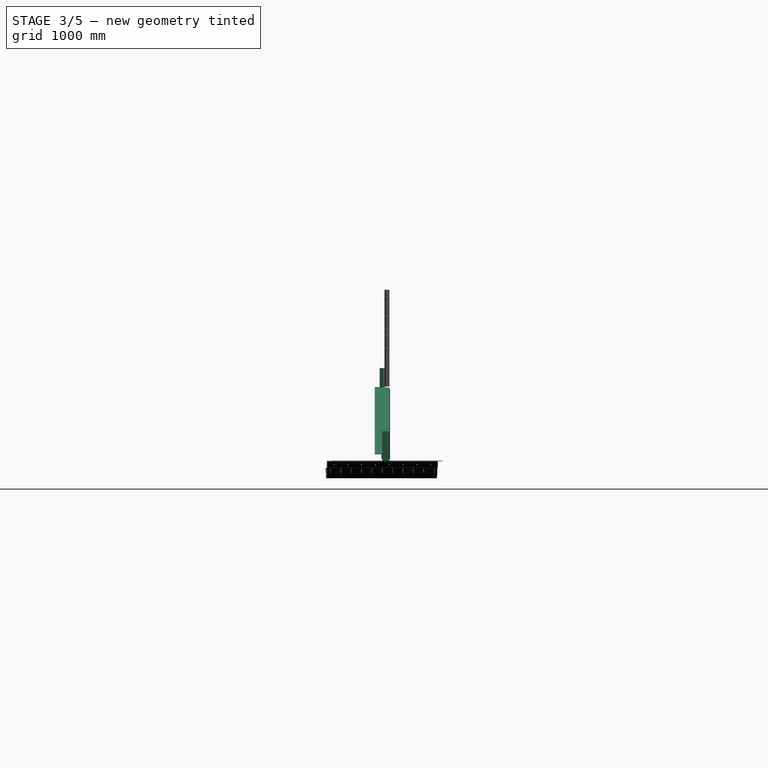
[diagram: stage 3 of 5 — right view after this stage's code; geometry added in this stage tinted green]
FEATURE [Part::FeaturePython] AngleSteel002  # WARN: FeaturePython — macro-defined, semantics opaque (R4)
  A = 75
  B = 75
  L = 965.314
  Placement = pos=(471.134,-37.5,728.708) rot=(0,1,0;2.35997rad)
  Solid = true
  g0 = 7.85
  mass = 6.6126
  size = 10
  standard = SS_Equal
  t = 6
  expr: .Placement.Base.x = Spreadsheet.H0 - Spreadsheet.h1 + Spreadsheet.lx
  expr: .Placement.Base.z = Spreadsheet.H0 - Spreadsheet.lz
  expr: .Placement.Rotation.Angle = Spreadsheet.sita + 90
  expr: L = Spreadsheet.l2 - 40
FEATURE [Part::FeaturePython] AngleSteel001  # WARN: FeaturePython — macro-defined, semantics opaque (R4)
  A = 75
  B = 75
  L = 720
  Placement = pos=(487.5,43.5,15) rot=(0,0,1;1.5708rad)
  Solid = true
  g0 = 7.85
  mass = 4.93215
  size = 10
  standard = SS_Equal
  t = 6
  expr: .Placement.Base.x = Spreadsheet.H0 - Spreadsheet.h1 + 37.5
  expr: L = Spreadsheet.H0 - 30
FEATURE [Part::FeaturePython] Array  label="verticalMember"  # Draft array (typed FeaturePython)
  AlwaysSyncPlacement = false
  Angle = 360
  ArrayType = 0
  Axis = (0,0,1)
  Base = -> AngleSteel001
  Center = (0,0,0)
  Count = 10
  ExpandArray = false
  Fuse = false
  IntervalAxis = (0,0,0)
  IntervalX = (669.444,0,0)
  IntervalY = (0,100,0)
  IntervalZ = (0,0,100)
  NumberCircles = 3
  NumberPolar = 5
  NumberX = 10
  NumberY = 1
  NumberZ = 1
  PlacementList = 10 placements: arithmetic series from (487.5,43.5,15) step (669.444,0,0) to (6512.5,43.5,15)
  RadialDistance = 50
  ScaleList = (10) [(1,1,1),(1,1,1),(1,1,1),(1,1,1),(1,1,1),(1,1,1),(1,1,1),(1,1,1),(1,1,1),(1,1,1)]
  Symmetry = 1
  TangentialDistance = 25
  expr: .IntervalX.x = Spreadsheet.p0
  expr: NumberX = Spreadsheet.n0
FEATURE [Spreadsheet::Sheet] Spreadsheet
  cells = A2='L0; B2(L0)=7000; A3='H0; B3(H0)=750; A4='h1; B4(h1)=300; A5='W0; B5(W0)=650; A6='div n0; B6(n0)=10; A7='p0; B7(p0)=669.444444444444; A8='sita; B8(sita)=45.2163249338554; A9='l2; B9(l2)=1005.31381379027; A10='lx; B10(lx)=21.1341979107056; A11='lz; B11(lz)=21.2919158055616; A12='beta; B12(beta)=5.7; A13='picketFence  pl; B13(pk)=1000; A14='bradePosition br; B14(br)=700; A15='no of brade n0; B15(n00)=7; A16='bradeSpacing; B16(brs)=950
FEATURE [Part::FeaturePython] AngleSteel  # WARN: FeaturePython — macro-defined, semantics opaque (R4)
  A = 75
  B = 75
  L = 1000
  Placement = pos=(0,0,0) rot=(0,0,1;1.5708rad)
  Solid = false
  g0 = 7.85
  mass = 0
  size = 10
  standard = SS_Equal
  t = 6
FEATURE [Part::Sweep] Sweep  label="mainMaterial"
  Frenet = false
  Sections = -> [AngleSteel]
  Solid = true
  Spine = -> Sketch [Edge6,Edge5,Edge4,Edge3,Edge2,Edge1]
  Transition = 1
FEATURE [Part::Cut] Cut
  Base = -> AngleSteel004
  Placement = pos=(450,0,750) rot=(0,1,0;0.099484rad)
  Tool = -> Extrude002
  expr: .Placement.Base.x = Spreadsheet.H0 - Spreadsheet.h1
  expr: .Placement.Base.z = Spreadsheet.H0
FEATURE [Part::FeaturePython] Array004  label="picketFenceReciever"  # Draft array (typed FeaturePython)
  AlwaysSyncPlacement = false
  Angle = 360
  ArrayType = 0
  Axis = (0,0,1)
  Base = -> Cut
  Center = (0,0,0)
  Count = 10
  ExpandArray = false
  Fuse = false
  IntervalAxis = (0,0,0)
  IntervalX = (669.444,0,0)
  IntervalY = (0,100,0)
  IntervalZ = (0,0,100)
  NumberCircles = 3
  NumberPolar = 5
  NumberX = 10
  NumberY = 1
  NumberZ = 1
  PlacementList = 10 placements: arithmetic series from (450,0,750) step (669.444,0,0) to (6475,0,750)
  RadialDistance = 50
  ScaleList = (10) [(1,1,1),(1,1,1),(1,1,1),(1,1,1),(1,1,1),(1,1,1),(1,1,1),(1,1,1),(1,1,1),(1,1,1)]
  Symmetry = 1
  TangentialDistance = 25
  expr: .IntervalX.x = Spreadsheet.p0
  expr: NumberX = Spreadsheet.n0
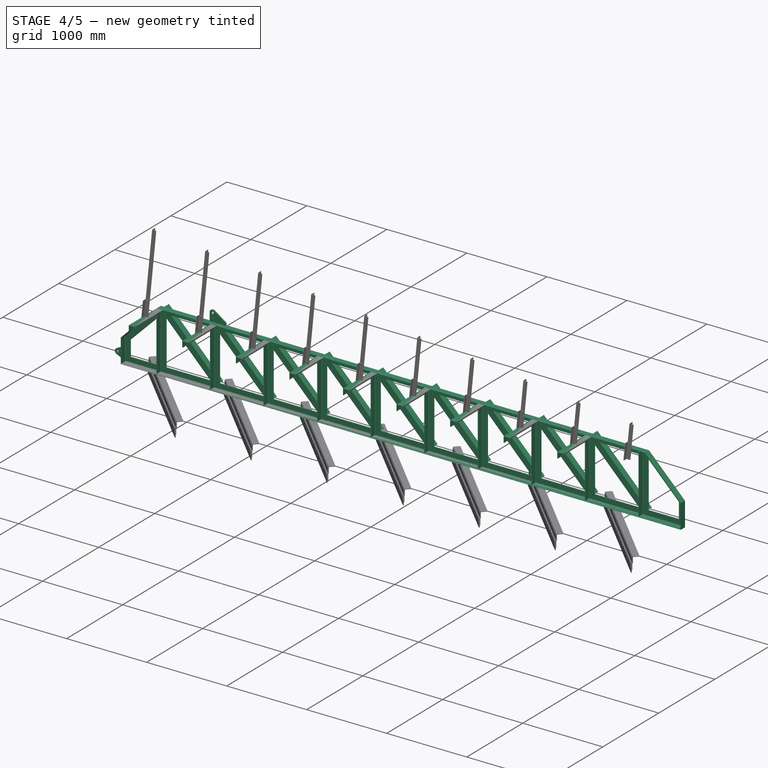
[diagram: stage 4 of 5 — iso view after this stage's code; geometry added in this stage tinted green]
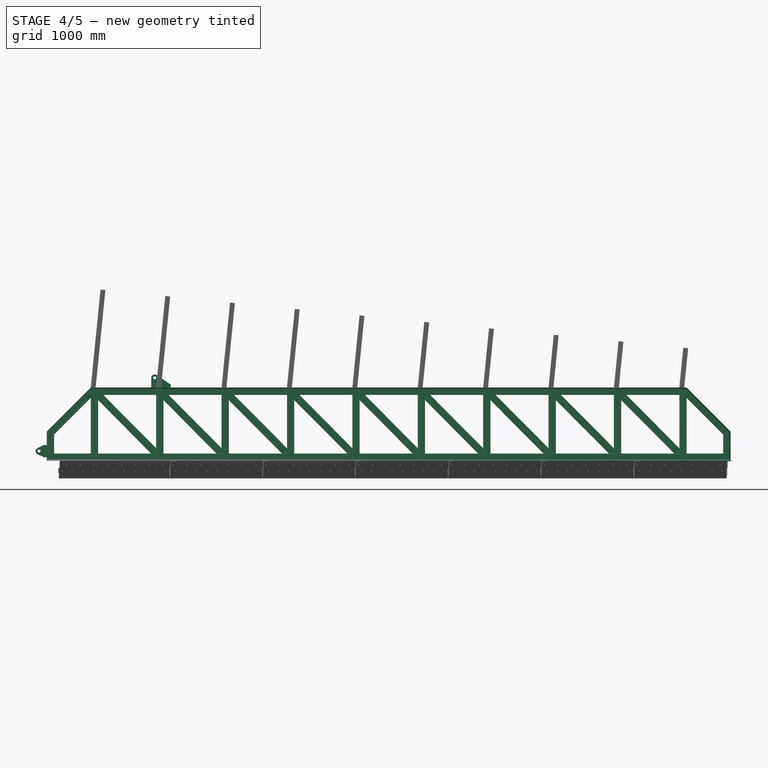
[diagram: stage 4 of 5 — front view after this stage's code; geometry added in this stage tinted green]
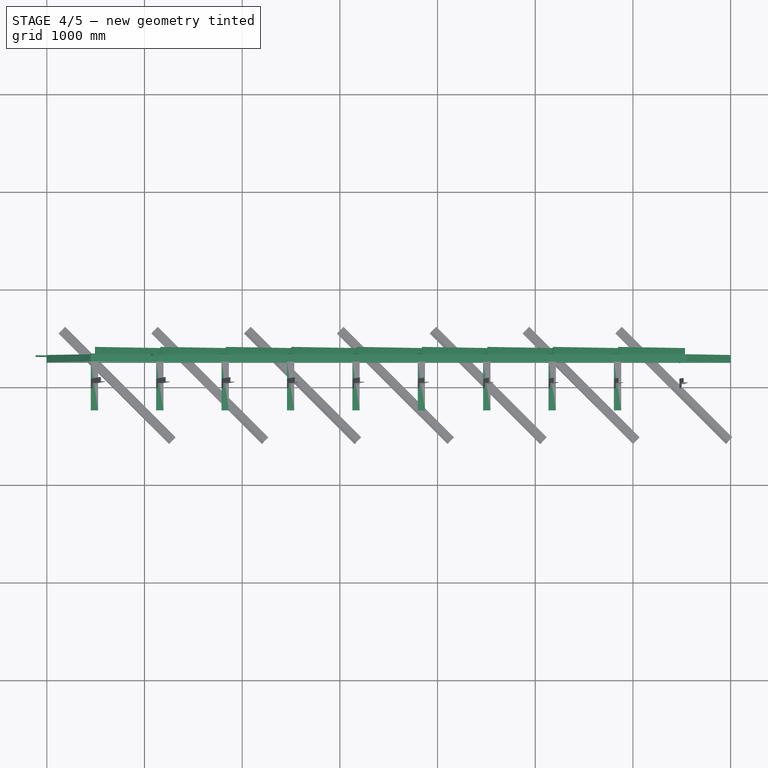
[diagram: stage 4 of 5 — top view after this stage's code; geometry added in this stage tinted green]
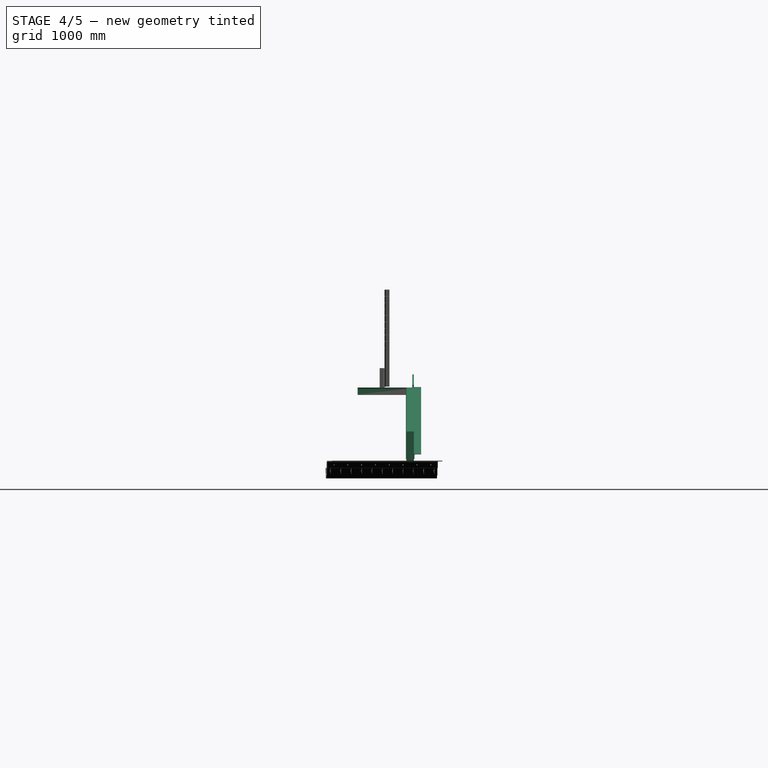
[diagram: stage 4 of 5 — right view after this stage's code; geometry added in this stage tinted green]
FEATURE [Part::FeaturePython] AngleSteel003  # WARN: FeaturePython — macro-defined, semantics opaque (R4)
  A = 75
  B = 75
  L = 500
  Placement = pos=(487.5,-250,712.5) rot=(0.57735,-0.57735,-0.57735;4.18879rad)
  Solid = true
  g0 = 7.85
  mass = 3.4251
  size = 10
  standard = SS_Equal
  t = 6
  expr: .Placement.Base.x = Spreadsheet.H0 - Spreadsheet.h1 + 37.5
  expr: .Placement.Base.y = -Spreadsheet.W0 / 2 + 75
  expr: .Placement.Base.z = Spreadsheet.H0 - 37.5
  expr: L = Spreadsheet.W0 - 150
FEATURE [Part::FeaturePython] Array002  label="topMember"  # Draft array (typed FeaturePython)
  AlwaysSyncPlacement = false
  Angle = 360
  ArrayType = 0
  Axis = (0,0,1)
  Base = -> AngleSteel003
  Center = (0,0,0)
  Count = 9
  ExpandArray = false
  Fuse = false
  IntervalAxis = (0,0,0)
  IntervalX = (669.444,0,0)
  IntervalY = (0,100,0)
  IntervalZ = (0,0,100)
  NumberCircles = 3
  NumberPolar = 5
  NumberX = 9
  NumberY = 1
  NumberZ = 1
  PlacementList = 9 placements: arithmetic series from (487.5,-250,712.5) step (669.444,0,0) to (5843.06,-250,712.5)
  RadialDistance = 50
  ScaleList = (9) [(1,1,1),(1,1,1),(1,1,1),(1,1,1),(1,1,1),(1,1,1),(1,1,1),(1,1,1),(1,1,1)]
  Symmetry = 1
  TangentialDistance = 25
  expr: .IntervalX.x = <<Spreadsheet>>.p0
  expr: NumberX = Spreadsheet.n0 - 1
FEATURE [Sketcher::SketchObject] Sketch001
  ArcFitTolerance = 0
  FullyConstrained = false
  MakeInternals = false
  Placement = pos=(0,0,0) rot=(1,0,0;1.5708rad)
  sketch-geometry (7):
    g0: LineSegment StartX=0 StartY=36.614 StartZ=0 EndX=0 EndY=161.614 EndZ=0
    g1: LineSegment StartX=0 StartY=161.614 StartZ=0 EndX=-30 EndY=161.614 EndZ=0
    g2: LineSegment StartX=-30 StartY=161.614 StartZ=0 EndX=-95.0179 EndY=130.728 EndZ=0
    g3: ArcOfCircle CenterX=-80 CenterY=99.114 CenterZ=0 NormalX=0 NormalY=0 NormalZ=1 AngleXU=0 Radius=35 StartAngle=2.01427 EndAngle=4.26891
    g4: LineSegment StartX=-95.0179 StartY=67.4997 StartZ=0 EndX=-30 EndY=36.614 EndZ=0
    g5: LineSegment StartX=-30 StartY=36.614 StartZ=0 EndX=0 EndY=36.614 EndZ=0
    g6: Circle CenterX=-80 CenterY=99.114 CenterZ=0 NormalX=0 NormalY=0 NormalZ=1 AngleXU=0 Radius=15
  constraints (18):
    c: Vertical(g0)
    c: Coincident(g0,g1)
    c: Horizontal(g1)
    c: Coincident(g1,g2)
    c: Tangent(g2,g3) = -1.5708
    c: Coincident(g4,g5)
    c: Coincident(g5,g0)
    c: Coincident(g6,g3)
    c: Horizontal(g5)
    c: PointOnObject(g0,g-2)
    c: DistanceY(g0,g0) = 125
    c: Equal(g1,g5)
    c: DistanceX(g1,g1) = 30
    c: Tangent(g3,g4) = -1.5708
    c: Distance(g3,g0) = 80
    c: Radius(g6) = 15
    c: Radius(g3) = 35
    c: Equal(g2,g4)
FEATURE [Part::Extrusion] Extrude  label="bracketBottom"
  Base = -> Sketch001
  Dir = (0,-1,2e-16)
  DirMode = 2
  FaceMakerClass = Part::FaceMakerBullseye
  FaceMakerMode = 3
  LengthFwd = 16
  LengthRev = 0
  Reversed = true
  Solid = true
  Symmetric = false
FEATURE [Part::FeaturePython] Array001  label="diagonalMember"  # Draft array (typed FeaturePython)
  AlwaysSyncPlacement = false
  Angle = 360
  ArrayType = 0
  Axis = (0,0,1)
  Base = -> AngleSteel002
  Center = (0,0,0)
  Count = 9
  ExpandArray = false
  Fuse = false
  IntervalAxis = (0,0,0)
  IntervalX = (669.444,0,0)
  IntervalY = (0,100,0)
  IntervalZ = (0,0,100)
  NumberCircles = 3
  NumberPolar = 5
  NumberX = 9
  NumberY = 1
  NumberZ = 1
  PlacementList = 9 placements: arithmetic series from (471.134,-37.5,728.708) step (669.444,0,0) to (5826.69,-37.5,728.708)
  RadialDistance = 50
  ScaleList = (9) [(1,1,1),(1,1,1),(1,1,1),(1,1,1),(1,1,1),(1,1,1),(1,1,1),(1,1,1),(1,1,1)]
  Symmetry = 1
  TangentialDistance = 25
  expr: .IntervalX.x = Spreadsheet.p0
  expr: NumberX = Spreadsheet.n0 - 1
FEATURE [Sketcher::SketchObject] Sketch
  ArcFitTolerance = 0
  AttachmentSupport = -> [XZ_Plane]
  FullyConstrained = true
  MakeInternals = false
  MapMode = 5
  Placement = pos=(0,0,0) rot=(1,0,0;1.5708rad)
  expr: Constraints[12] = Spreadsheet.L0
  expr: Constraints[15] = Spreadsheet.h1
  expr: Constraints[16] = Spreadsheet.H0
  sketch-geometry (6):
    g0: LineSegment StartX=0 StartY=0 StartZ=0 EndX=0 EndY=300 EndZ=0
    g1: LineSegment StartX=0 StartY=300 StartZ=0 EndX=450 EndY=750 EndZ=0
    g2: LineSegment StartX=450 StartY=750 StartZ=0 EndX=6550 EndY=750 EndZ=0
    g3: LineSegment StartX=6550 StartY=750 StartZ=0 EndX=7000 EndY=300 EndZ=0
    g4: LineSegment StartX=7000 StartY=300 StartZ=0 EndX=7000 EndY=0 EndZ=0
    g5: LineSegment StartX=7000 StartY=0 StartZ=0 EndX=0 EndY=0 EndZ=0
  constraints (18):
    c: PointOnObject(g0,g-2)
    c: PointOnObject(g0,g-2)
    c: Coincident(g0,g1)
    c: Coincident(g1,g2)
    c: Horizontal(g2)
    c: Coincident(g2,g3)
    c: Coincident(g3,g4)
    c: PointOnObject(g4,g-1)
    c: Vertical(g4)
    c: Coincident(g4,g5)
    c: Coincident(g5,g0)
    c: Horizontal(g5)
    c: Distance(g5) = 7000
    c: Angle(g-2,g1) = 2.35619
    c: Angle(g2,g3) = 2.35619
    c: DistanceY(g0,g0) = 300
    c: Distance(g2,g5) = 750
    c: Equal(g4,g0)
FEATURE [Sketcher::SketchObject] Sketch002
  ArcFitTolerance = 0
  ExternalGeometry = -> [Sketch,AngleSteel003]
  FullyConstrained = true
  MakeInternals = false
  Placement = pos=(0,0,0) rot=(1,0,0;1.5708rad)
  expr: Constraints[15] = Spreadsheet.H0 - Spreadsheet.h1 + Spreadsheet.p0 - 50
  sketch-geometry (6):
    g0: LineSegment StartX=1269.44 StartY=750 StartZ=0 EndX=1269.44 EndY=780 EndZ=0
    g1: LineSegment StartX=1269.44 StartY=780 StartZ=0 EndX=1124.14 EndY=878.931 EndZ=0
    g2: ArcOfCircle CenterX=1104.44 CenterY=850 CenterZ=0 NormalX=0 NormalY=0 NormalZ=1 AngleXU=0 Radius=35 StartAngle=0.97303 EndAngle=3.14159
    g3: Circle CenterX=1104.44 CenterY=850 CenterZ=0 NormalX=0 NormalY=0 NormalZ=1 AngleXU=0 Radius=15
    g4: LineSegment StartX=1069.44 StartY=850 StartZ=0 EndX=1069.44 EndY=750 EndZ=0
    g5: LineSegment StartX=1069.44 StartY=750 StartZ=0 EndX=1269.44 EndY=750 EndZ=0
  constraints (16):
    c: Coincident(g0,g1)
    c: Tangent(g1,g2) = -1.5708
    c: Coincident(g3,g2)
    c: Vertical(g0)
    c: DistanceY(g0,g0) = 30
    c: Radius(g3) = 15
    c: Radius(g2) = 35
    c: DistanceX(g2,g0) = 200
    c: PointOnObject(g4,g-3)
    c: PointOnObject(g0,g-3)
    c: Coincident(g5,g4)
    c: Coincident(g5,g0)
    c: Vertical(g4)
    c: Tangent(g4,g2) = -1.5708
    c: DistanceY(g4,g2) = 100
    c: Distance(g4,g-2) = 1069.44
FEATURE [Part::Extrusion] Extrude001  label="bracketTop"
  Base = -> Sketch002
  Dir = (0,-1,2e-16)
  DirMode = 2
  FaceMakerClass = Part::FaceMakerBullseye
  FaceMakerMode = 3
  LengthFwd = 16
  LengthRev = 0
  Reversed = true
  Solid = true
  Symmetric = false
FEATURE [Part::Compound] Compound  label="rake"
  Links = -> [Sweep,Array,Array001,Extrude,Extrude001]
  Placement = pos=(0,-325,0) rot=(0,0,1;0rad)
  expr: .Placement.Base.y = -Spreadsheet.W0 / 2
FEATURE [Part::Mirroring] Mirror  label="rake001"
  Base = (0,-8.88e-14,400)
  Normal = (0,-1,0)
  Source = -> Compound
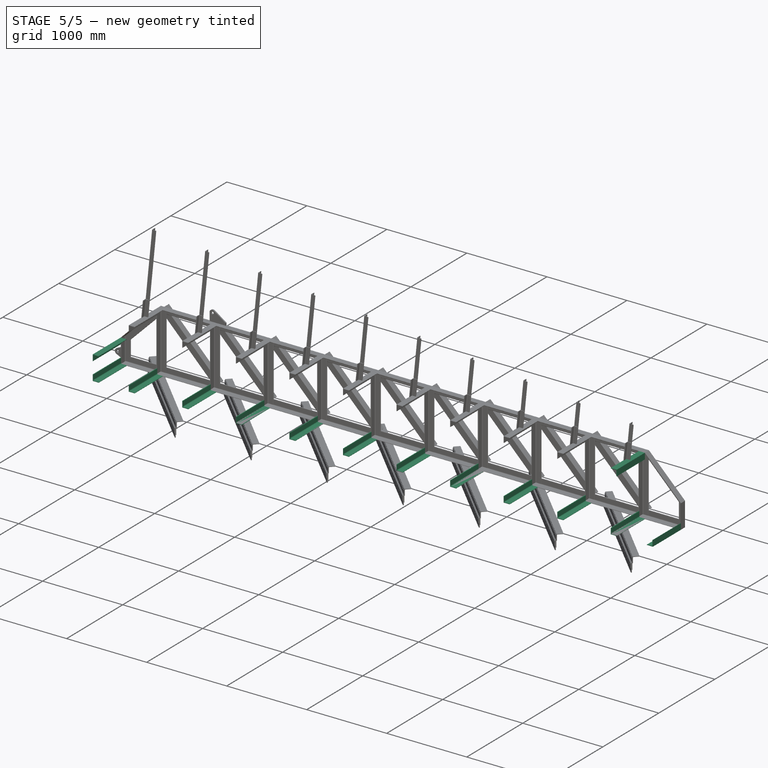
[diagram: stage 5 of 5 — iso view after this stage's code; geometry added in this stage tinted green]
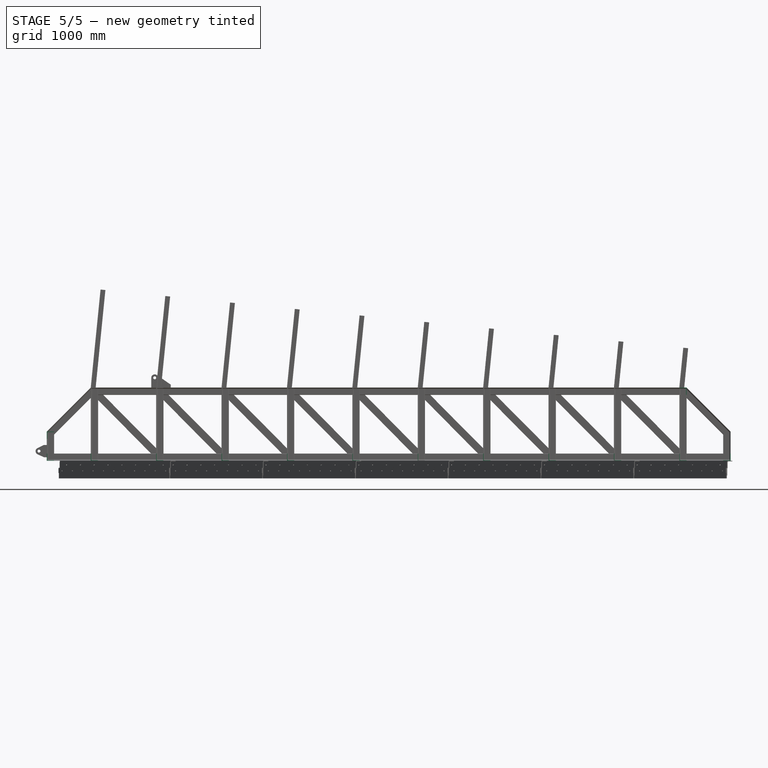
[diagram: stage 5 of 5 — front view after this stage's code; geometry added in this stage tinted green]
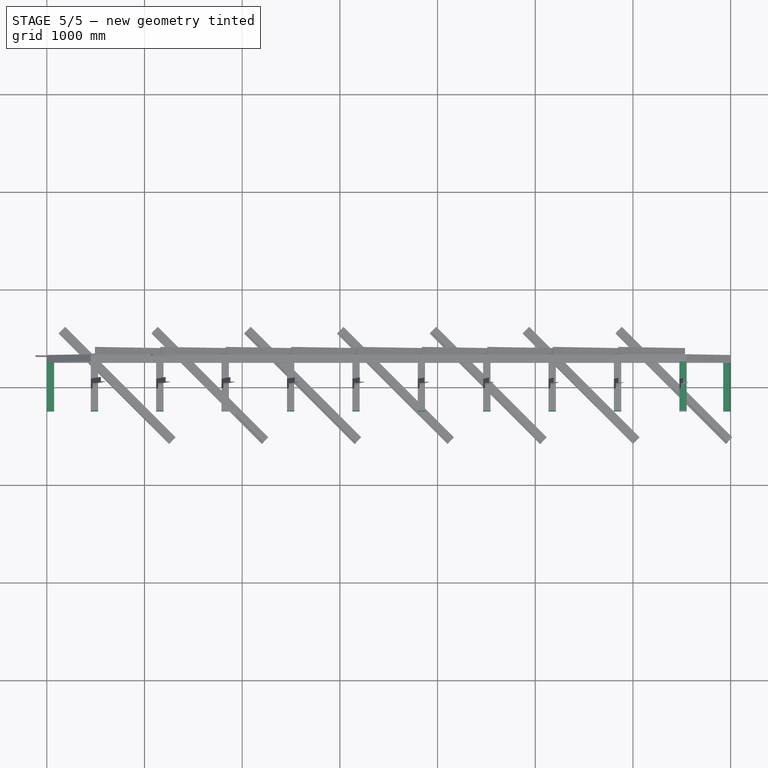
[diagram: stage 5 of 5 — top view after this stage's code; geometry added in this stage tinted green]
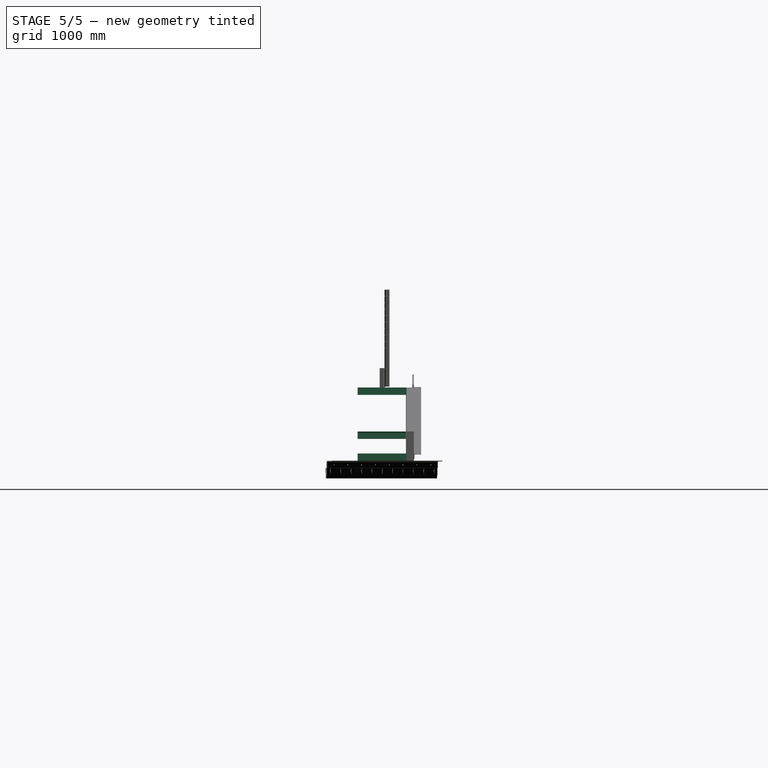
[diagram: stage 5 of 5 — right view after this stage's code; geometry added in this stage tinted green]
FEATURE [Part::FeaturePython] Clone004  label="AngleSteel008"  # Draft clone (typed FeaturePython)
  AttacherType = Attacher::AttachEngine3D
  Fuse = false
  Objects = -> [AngleSteel003]
  Placement = pos=(37.5,-250,262.5) rot=(0.57735,-0.57735,-0.57735;4.18879rad)
  Scale = (1,1,1)
  expr: .Placement.Base.y = -Spreadsheet.W0 / 2 + 75
  expr: .Placement.Base.z = Spreadsheet.h1 - 37.5
FEATURE [Part::FeaturePython] Clone003  label="AngleSteel007"  # Draft clone (typed FeaturePython)
  AttacherType = Attacher::AttachEngine3D
  Fuse = false
  Objects = -> [AngleSteel003]
  Placement = pos=(37.5,-250,37.5) rot=(-1,0,0;1.5708rad)
  Scale = (1,1,1)
  expr: .Placement.Base.y = -Spreadsheet.W0 / 2 + 75
FEATURE [Part::FeaturePython] Clone002  label="AngleSteel006"  # Draft clone (typed FeaturePython)
  AttacherType = Attacher::AttachEngine3D
  Fuse = false
  Objects = -> [AngleSteel003]
  Placement = pos=(6962.5,-250,37.54) rot=(0.57735,0.57735,0.57735;4.18879rad)
  Scale = (1,1,1)
  expr: .Placement.Base.x = Spreadsheet.L0 - 37.5
  expr: .Placement.Base.y = -Spreadsheet.W0 / 2 + 75
FEATURE [Part::FeaturePython] Clone001  label="AngleSteel005"  # Draft clone (typed FeaturePython)
  AttacherType = Attacher::AttachEngine3D
  Fuse = false
  Objects = -> [AngleSteel003]
  Placement = pos=(487.5,-250,37.5) rot=(-1,0,0;1.5708rad)
  Scale = (1,1,1)
  expr: .Placement.Base.x = Spreadsheet.H0 - Spreadsheet.h1 + 37.5
  expr: .Placement.Base.y = -Spreadsheet.W0 / 2 + 75
FEATURE [Part::FeaturePython] Array003  label="bottmMember"  # Draft array (typed FeaturePython)
  AlwaysSyncPlacement = false
  Angle = 360
  ArrayType = 0
  Axis = (0,0,1)
  Base = -> Clone001
  Center = (0,0,0)
  Count = 10
  ExpandArray = false
  Fuse = false
  IntervalAxis = (0,0,0)
  IntervalX = (669.444,0,0)
  IntervalY = (0,100,0)
  IntervalZ = (0,0,100)
  NumberCircles = 3
  NumberPolar = 5
  NumberX = 10
  NumberY = 1
  NumberZ = 1
  PlacementList = 10 placements: arithmetic series from (487.5,-250,37.5) step (669.444,0,0) to (6512.5,-250,37.5)
  RadialDistance = 50
  ScaleList = (10) [(1,1,1),(1,1,1),(1,1,1),(1,1,1),(1,1,1),(1,1,1),(1,1,1),(1,1,1),(1,1,1),(1,1,1)]
  Symmetry = 1
  TangentialDistance = 25
  expr: .IntervalX.x = Spreadsheet.p0
  expr: NumberX = Spreadsheet.n0
FEATURE [Part::FeaturePython] Clone  label="AngleSteel004"  # Draft clone (typed FeaturePython)
  AttacherType = Attacher::AttachEngine3D
  Fuse = false
  Objects = -> [AngleSteel003]
  Placement = pos=(6512.5,-250,712.5) rot=(0,0.707107,0.707107;3.14159rad)
  Scale = (1,1,1)
  expr: .Placement.Base.x = Spreadsheet.L0 - (Spreadsheet.H0 - Spreadsheet.h1) - 37.5
  expr: .Placement.Base.y = -Spreadsheet.W0 / 2 + 75
  expr: .Placement.Base.z = Spreadsheet.H0 - 37.5
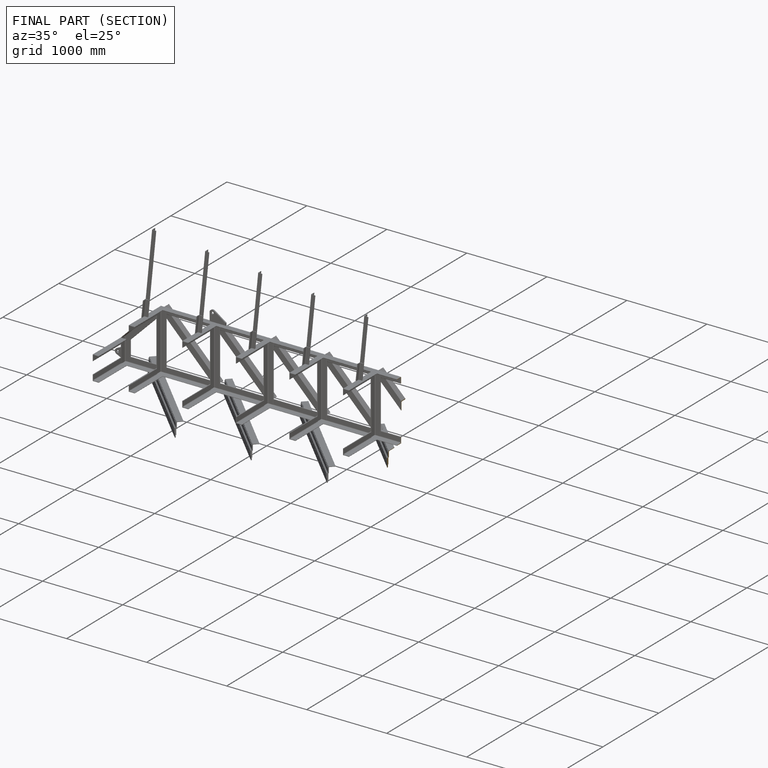
[diagram: finished part — half-section view (interior)]
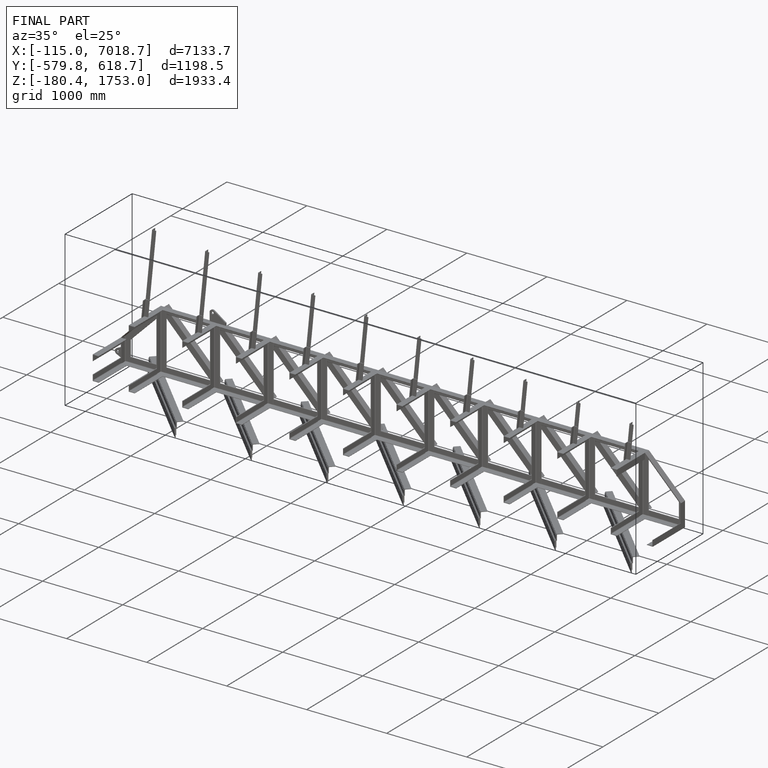
[diagram: finished part — iso view with bounding-box wireframe]
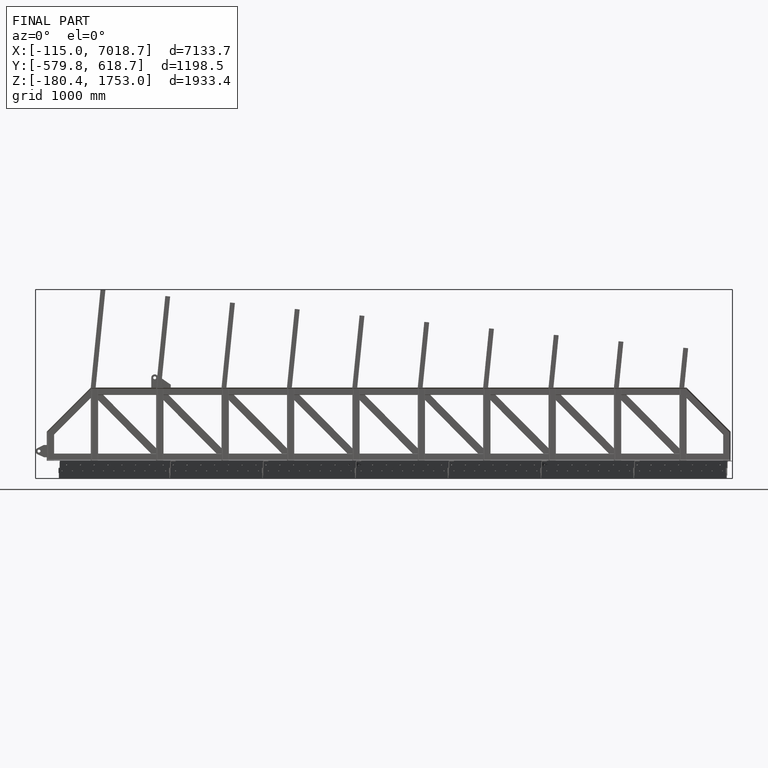
[diagram: finished part — front view with bounding-box wireframe]
